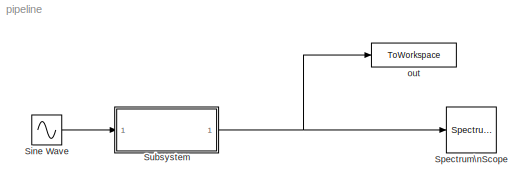
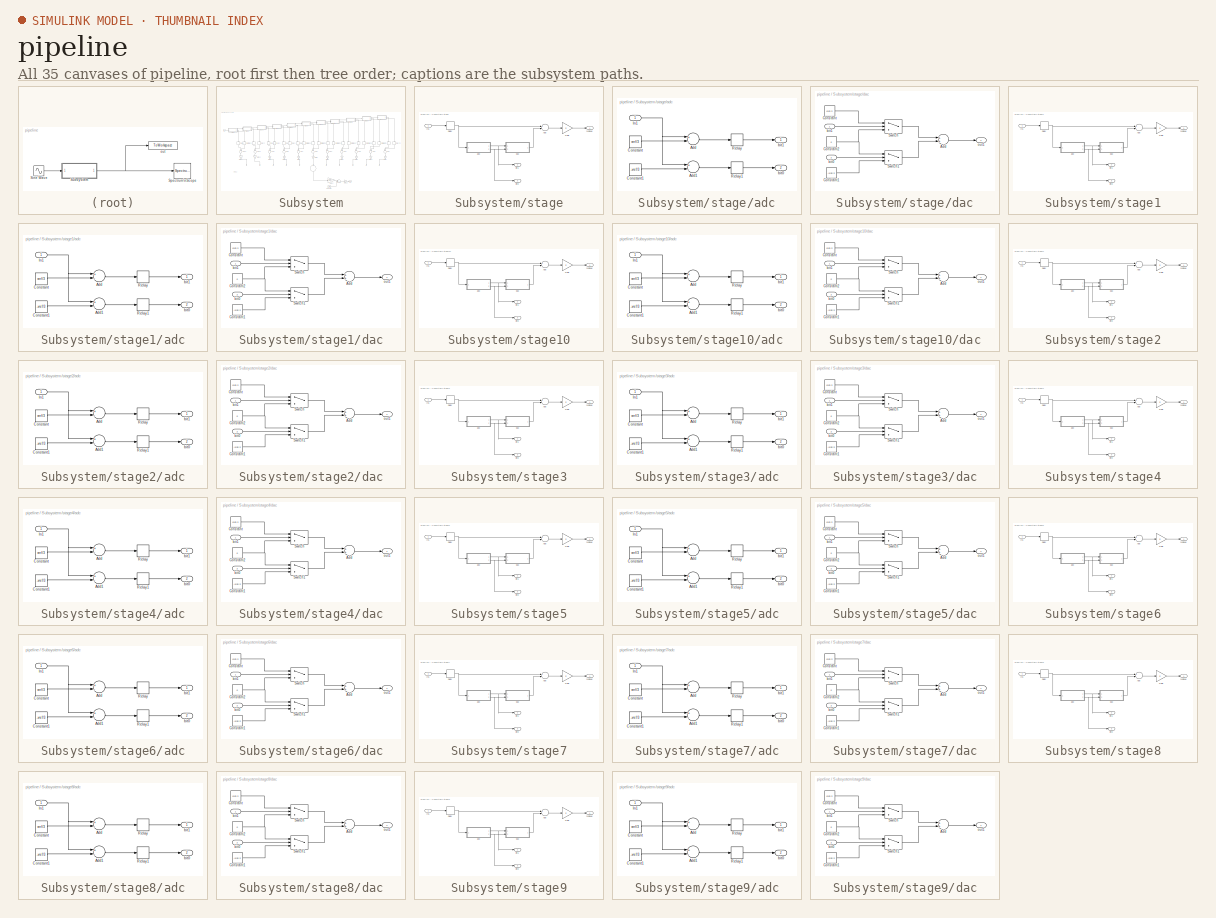
[diagram: thumbnail index - all 35 canvases of the model, root first then tree order]
MODEL pipeline
KIND model
BLOCK [Sin] Sine Wave
  Amplitude = vin_amp
  Frequency = 2*pi*fsig
  Ports = [0, 1]
  SID = 1110
  SampleTime = Ts
  VectorParams1D = off
BLOCK [SpectrumAnalyzer] Spectrum\nScope
  Commented = on
  Ports = [1]
  SID = 3024
  ScopeSpecificationString = spbscopes.SpectrumAnalyzerBlockCfg('CurrentConfiguration', extmgr.ConfigurationSet(extmgr.Configuration('Core','General UI',true),extmgr.Configuration('Core','Source UI',true),extmgr.Configuration('Sources','WiredSimulink',true),extmgr.Configuration('Sources','SimulinkEvent',false),extmgr.Configuration('Sources','Simulink',false),extmgr.Configuration('Sources','SPTool',false),extmgr.Configuration(...<+4573ch>
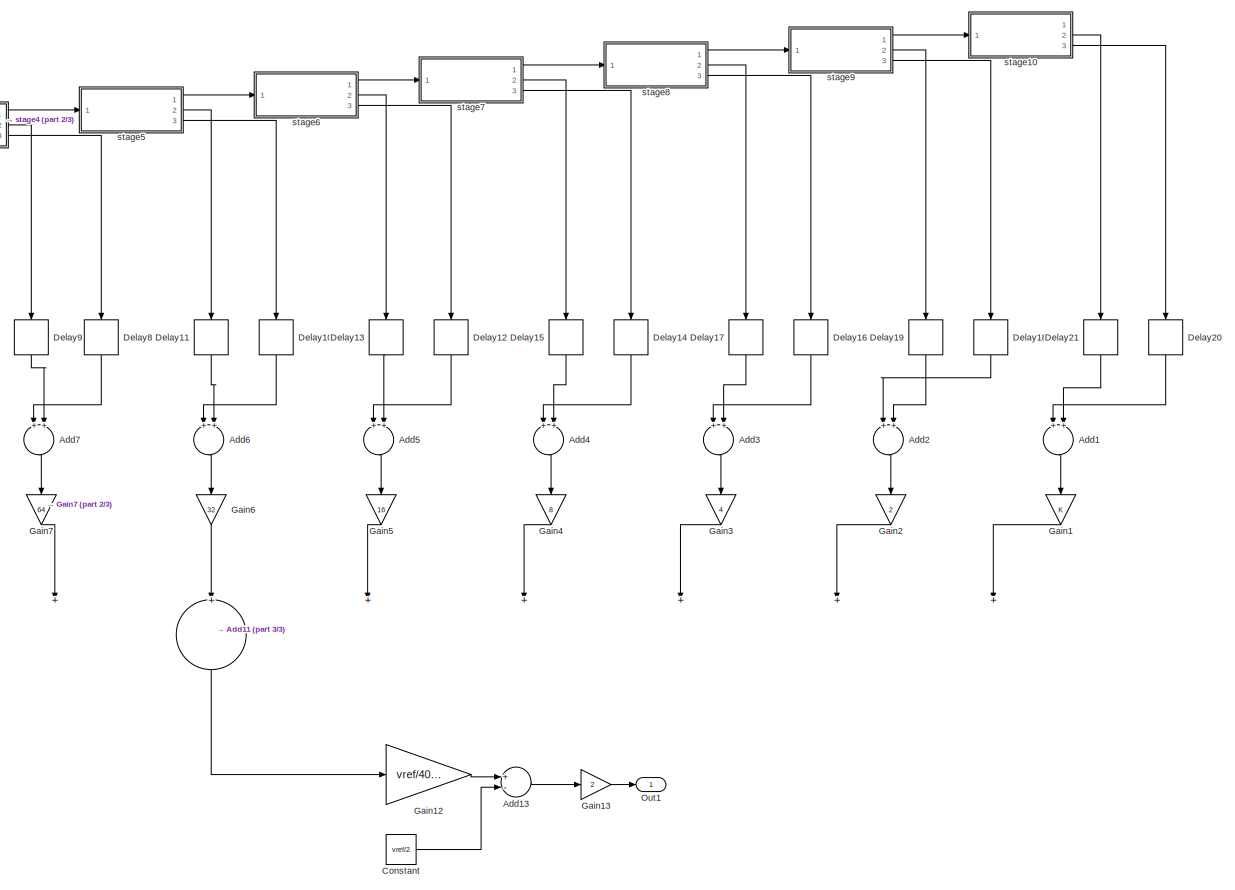
[diagram: Subsystem - part 1/3, right side, full height]
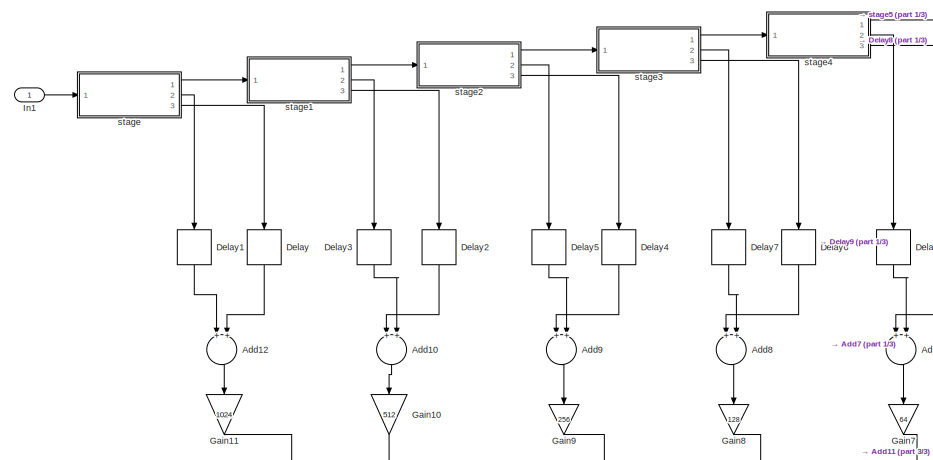
[diagram: Subsystem - part 2/3, middle left region]
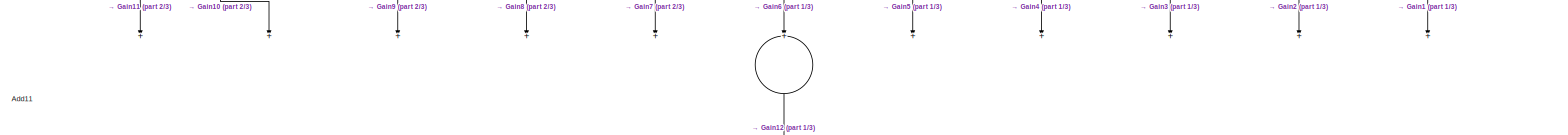
[diagram: Subsystem - part 3/3, full width, bottom band]
BLOCK [SubSystem] Subsystem
  Ports = [1, 1]
  RequestExecContextInheritance = off
  SID = 435
BLOCK [Sum] Subsystem/Add1
  InputSameDT = off
  OutDataTypeStr = Inherit: Inherit via internal rule
  Ports = [2, 1]
  SID = 1446
  SaturateOnIntegerOverflow = off
BLOCK [Sum] Subsystem/Add10
  InputSameDT = off
  OutDataTypeStr = Inherit: Inherit via internal rule
  Ports = [2, 1]
  SID = 1470
  SaturateOnIntegerOverflow = off
BLOCK [Sum] Subsystem/Add11
  InputSameDT = off
  Inputs = +++++++++++
  OutDataTypeStr = Inherit: Inherit via internal rule
  Ports = [11, 1]
  SID = 1473
  SaturateOnIntegerOverflow = off
BLOCK [Sum] Subsystem/Add12
  InputSameDT = off
  OutDataTypeStr = Inherit: Inherit via internal rule
  Ports = [2, 1]
  SID = 3019
  SaturateOnIntegerOverflow = off
BLOCK [Sum] Subsystem/Add13
  InputSameDT = off
  Inputs = +-
  OutDataTypeStr = Inherit: Inherit via internal rule
  Ports = [2, 1]
  SID = 3021
  SaturateOnIntegerOverflow = off
BLOCK [Sum] Subsystem/Add2
  InputSameDT = off
  OutDataTypeStr = Inherit: Inherit via internal rule
  Ports = [2, 1]
  SID = 1448
  SaturateOnIntegerOverflow = off
BLOCK [Sum] Subsystem/Add3
  InputSameDT = off
  OutDataTypeStr = Inherit: Inherit via internal rule
  Ports = [2, 1]
  SID = 1456
  SaturateOnIntegerOverflow = off
BLOCK [Sum] Subsystem/Add4
  InputSameDT = off
  OutDataTypeStr = Inherit: Inherit via internal rule
  Ports = [2, 1]
  SID = 1458
  SaturateOnIntegerOverflow = off
BLOCK [Sum] Subsystem/Add5
  InputSameDT = off
  OutDataTypeStr = Inherit: Inherit via internal rule
  Ports = [2, 1]
  SID = 1460
  SaturateOnIntegerOverflow = off
BLOCK [Sum] Subsystem/Add6
  InputSameDT = off
  OutDataTypeStr = Inherit: Inherit via internal rule
  Ports = [2, 1]
  SID = 1462
  SaturateOnIntegerOverflow = off
BLOCK [Sum] Subsystem/Add7
  InputSameDT = off
  OutDataTypeStr = Inherit: Inherit via internal rule
  Ports = [2, 1]
  SID = 1464
  SaturateOnIntegerOverflow = off
BLOCK [Sum] Subsystem/Add8
  InputSameDT = off
  OutDataTypeStr = Inherit: Inherit via internal rule
  Ports = [2, 1]
  SID = 1466
  SaturateOnIntegerOverflow = off
BLOCK [Sum] Subsystem/Add9
  InputSameDT = off
  OutDataTypeStr = Inherit: Inherit via internal rule
  Ports = [2, 1]
  SID = 1468
  SaturateOnIntegerOverflow = off
BLOCK [Constant] Subsystem/Constant
  SID = 3022
  Value = vref/2
BLOCK [Delay] Subsystem/Delay
  DelayLength = 11
  InputPortMap = u0
  Ports = [1, 1]
  SID = 1419
  SampleTime = Ts
BLOCK [Delay] Subsystem/Delay1
  DelayLength = 11
  InputPortMap = u0
  Ports = [1, 1]
  SID = 1421
  SampleTime = Ts
BLOCK [Delay] Subsystem/Delay10
  DelayLength = 6
  InputPortMap = u0
  Ports = [1, 1]
  SID = 1430
  SampleTime = Ts
BLOCK [Delay] Subsystem/Delay11
  DelayLength = 6
  InputPortMap = u0
  Ports = [1, 1]
  SID = 1431
  SampleTime = Ts
BLOCK [Delay] Subsystem/Delay12
  DelayLength = 5
  InputPortMap = u0
  Ports = [1, 1]
  SID = 1432
  SampleTime = Ts
BLOCK [Delay] Subsystem/Delay13
  DelayLength = 5
  InputPortMap = u0
  Ports = [1, 1]
  SID = 1433
  SampleTime = Ts
BLOCK [Delay] Subsystem/Delay14
  DelayLength = 4
  InputPortMap = u0
  Ports = [1, 1]
  SID = 1434
  SampleTime = Ts
BLOCK [Delay] Subsystem/Delay15
  DelayLength = 4
  InputPortMap = u0
  Ports = [1, 1]
  SID = 1435
  SampleTime = Ts
BLOCK [Delay] Subsystem/Delay16
  DelayLength = 3
  InputPortMap = u0
  Ports = [1, 1]
  SID = 1436
  SampleTime = Ts
BLOCK [Delay] Subsystem/Delay17
  DelayLength = 3
  InputPortMap = u0
  Ports = [1, 1]
  SID = 1437
  SampleTime = Ts
BLOCK [Delay] Subsystem/Delay18
  InputPortMap = u0
  Ports = [1, 1]
  SID = 1438
  SampleTime = Ts
BLOCK [Delay] Subsystem/Delay19
  InputPortMap = u0
  Ports = [1, 1]
  SID = 1439
  SampleTime = Ts
BLOCK [Delay] Subsystem/Delay2
  DelayLength = 10
  InputPortMap = u0
  Ports = [1, 1]
  SID = 1422
  SampleTime = Ts
BLOCK [Delay] Subsystem/Delay20
  DelayLength = 1
  InputPortMap = u0
  Ports = [1, 1]
  SID = 1440
  SampleTime = Ts
BLOCK [Delay] Subsystem/Delay21
  DelayLength = 1
  InputPortMap = u0
  Ports = [1, 1]
  SID = 1441
  SampleTime = Ts
BLOCK [Delay] Subsystem/Delay3
  DelayLength = 10
  InputPortMap = u0
  Ports = [1, 1]
  SID = 1423
  SampleTime = Ts
BLOCK [Delay] Subsystem/Delay4
  DelayLength = 9
  InputPortMap = u0
  Ports = [1, 1]
  SID = 1424
  SampleTime = Ts
BLOCK [Delay] Subsystem/Delay5
  DelayLength = 9
  InputPortMap = u0
  Ports = [1, 1]
  SID = 1425
  SampleTime = Ts
BLOCK [Delay] Subsystem/Delay6
  DelayLength = 8
  InputPortMap = u0
  Ports = [1, 1]
  SID = 1426
  SampleTime = Ts
BLOCK [Delay] Subsystem/Delay7
  DelayLength = 8
  InputPortMap = u0
  Ports = [1, 1]
  SID = 1427
  SampleTime = Ts
BLOCK [Delay] Subsystem/Delay8
  DelayLength = 7
  InputPortMap = u0
  Ports = [1, 1]
  SID = 1428
  SampleTime = Ts
BLOCK [Delay] Subsystem/Delay9
  DelayLength = 7
  InputPortMap = u0
  Ports = [1, 1]
  SID = 1429
  SampleTime = Ts
BLOCK [Gain] Subsystem/Gain1
  OutDataTypeStr = Inherit: Inherit via internal rule
  ParamDataTypeStr = Inherit: Inherit via internal rule
  SID = 1447
  SaturateOnIntegerOverflow = off
BLOCK [Gain] Subsystem/Gain10
  Gain = 512
  OutDataTypeStr = Inherit: Inherit via internal rule
  ParamDataTypeStr = Inherit: Inherit via internal rule
  SID = 1471
  SaturateOnIntegerOverflow = off
BLOCK [Gain] Subsystem/Gain11
  Gain = 1024
  OutDataTypeStr = Inherit: Inherit via internal rule
  ParamDataTypeStr = Inherit: Inherit via internal rule
  SID = 1472
  SaturateOnIntegerOverflow = off
BLOCK [Gain] Subsystem/Gain12
  Gain = vref/4096
  OutDataTypeStr = Inherit: Inherit via internal rule
  ParamDataTypeStr = Inherit: Inherit via internal rule
  SID = 3020
  SaturateOnIntegerOverflow = off
BLOCK [Gain] Subsystem/Gain13
  Gain = 2
  OutDataTypeStr = Inherit: Inherit via internal rule
  ParamDataTypeStr = Inherit: Inherit via internal rule
  SID = 3023
  SaturateOnIntegerOverflow = off
BLOCK [Gain] Subsystem/Gain2
  Gain = 2
  OutDataTypeStr = Inherit: Inherit via internal rule
  ParamDataTypeStr = Inherit: Inherit via internal rule
  SID = 1449
  SaturateOnIntegerOverflow = off
BLOCK [Gain] Subsystem/Gain3
  Gain = 4
  OutDataTypeStr = Inherit: Inherit via internal rule
  ParamDataTypeStr = Inherit: Inherit via internal rule
  SID = 1457
  SaturateOnIntegerOverflow = off
BLOCK [Gain] Subsystem/Gain4
  Gain = 8
  OutDataTypeStr = Inherit: Inherit via internal rule
  ParamDataTypeStr = Inherit: Inherit via internal rule
  SID = 1459
  SaturateOnIntegerOverflow = off
BLOCK [Gain] Subsystem/Gain5
  Gain = 16
  OutDataTypeStr = Inherit: Inherit via internal rule
  ParamDataTypeStr = Inherit: Inherit via internal rule
  SID = 1461
  SaturateOnIntegerOverflow = off
BLOCK [Gain] Subsystem/Gain6
  Gain = 32
  OutDataTypeStr = Inherit: Inherit via internal rule
  ParamDataTypeStr = Inherit: Inherit via internal rule
  SID = 1463
  SaturateOnIntegerOverflow = off
BLOCK [Gain] Subsystem/Gain7
  Gain = 64
  OutDataTypeStr = Inherit: Inherit via internal rule
  ParamDataTypeStr = Inherit: Inherit via internal rule
  SID = 1465
  SaturateOnIntegerOverflow = off
BLOCK [Gain] Subsystem/Gain8
  Gain = 128
  OutDataTypeStr = Inherit: Inherit via internal rule
  ParamDataTypeStr = Inherit: Inherit via internal rule
  SID = 1467
  SaturateOnIntegerOverflow = off
BLOCK [Gain] Subsystem/Gain9
  Gain = 256
  OutDataTypeStr = Inherit: Inherit via internal rule
  ParamDataTypeStr = Inherit: Inherit via internal rule
  SID = 1469
  SaturateOnIntegerOverflow = off
BLOCK [Inport] Subsystem/In1
  IconDisplay = Port number
  SID = 436
BLOCK [Outport] Subsystem/Out1
  IconDisplay = Port number
  SID = 1476
  VectorParamsAs1DForOutWhenUnconnected = off
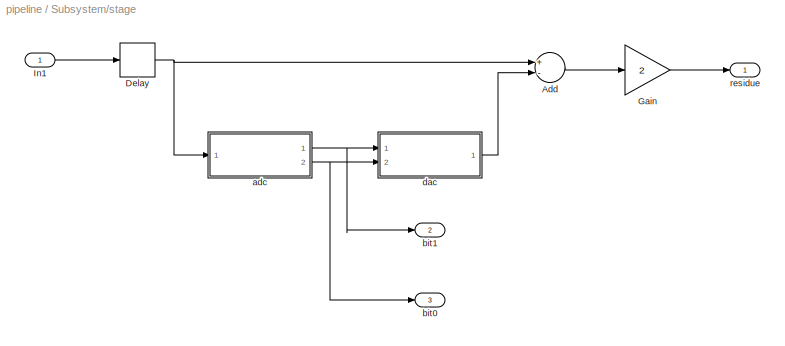
BLOCK [SubSystem] Subsystem/stage
  Ports = [1, 3]
  RequestExecContextInheritance = off
  SID = 774
BLOCK [Sum] Subsystem/stage/Add
  InputSameDT = off
  Inputs = +-
  OutDataTypeStr = Inherit: Inherit via internal rule
  Ports = [2, 1]
  SID = 776
  SaturateOnIntegerOverflow = off
BLOCK [Delay] Subsystem/stage/Delay
  DelayLength = 1
  InputPortMap = u0
  Ports = [1, 1]
  SID = 777
  SampleTime = Ts
BLOCK [Gain] Subsystem/stage/Gain
  Gain = 2
  OutDataTypeStr = Inherit: Inherit via internal rule
  ParamDataTypeStr = Inherit: Inherit via internal rule
  SID = 778
  SaturateOnIntegerOverflow = off
BLOCK [Inport] Subsystem/stage/In1
  IconDisplay = Port number
  SID = 775
BLOCK [SubSystem] Subsystem/stage/adc
  Ports = [1, 2]
  RequestExecContextInheritance = off
  SID = 779
BLOCK [Sum] Subsystem/stage/adc/Add
  InputSameDT = off
  Inputs = +-
  OutDataTypeStr = Inherit: Inherit via internal rule
  Ports = [2, 1]
  SID = 781
  SaturateOnIntegerOverflow = off
BLOCK [Sum] Subsystem/stage/adc/Add1
  InputSameDT = off
  Inputs = +-
  OutDataTypeStr = Inherit: Inherit via internal rule
  Ports = [2, 1]
  SID = 782
  SaturateOnIntegerOverflow = off
BLOCK [Constant] Subsystem/stage/adc/Constant
  SID = 783
  Value = vref/3
BLOCK [Constant] Subsystem/stage/adc/Constant1
  SID = 784
  Value = -vref/3
BLOCK [Inport] Subsystem/stage/adc/In1
  IconDisplay = Port number
  SID = 780
BLOCK [Relay] Subsystem/stage/adc/Relay
  OffSwitchValue = 0
  OnSwitchValue = 0
  SID = 785
BLOCK [Relay] Subsystem/stage/adc/Relay1
  OffSwitchValue = 0
  OnSwitchValue = 0
  SID = 786
BLOCK [Outport] Subsystem/stage/adc/bit0
  IconDisplay = Port number
  Port = 2
  SID = 788
  VectorParamsAs1DForOutWhenUnconnected = off
BLOCK [Outport] Subsystem/stage/adc/bit1
  IconDisplay = Port number
  SID = 787
  VectorParamsAs1DForOutWhenUnconnected = off
BLOCK [Outport] Subsystem/stage/bit0
  IconDisplay = Port number
  Port = 3
  SID = 801
  VectorParamsAs1DForOutWhenUnconnected = off
BLOCK [Outport] Subsystem/stage/bit1
  IconDisplay = Port number
  Port = 2
  SID = 800
  VectorParamsAs1DForOutWhenUnconnected = off
BLOCK [SubSystem] Subsystem/stage/dac
  Ports = [2, 1]
  RequestExecContextInheritance = off
  SID = 789
BLOCK [Sum] Subsystem/stage/dac/Add
  InputSameDT = off
  OutDataTypeStr = Inherit: Inherit via internal rule
  Ports = [2, 1]
  SID = 792
  SaturateOnIntegerOverflow = off
BLOCK [Constant] Subsystem/stage/dac/Constant
  SID = 793
  Value = vref/2
BLOCK [Constant] Subsystem/stage/dac/Constant1
  SID = 794
  Value = -vref/2
BLOCK [Constant] Subsystem/stage/dac/Constant2
  SID = 795
  Value = 0
BLOCK [Switch] Subsystem/stage/dac/Switch
  Criteria = u2 > Threshold
  InputSameDT = off
  SID = 796
  SaturateOnIntegerOverflow = off
BLOCK [Switch] Subsystem/stage/dac/Switch1
  Criteria = u2 > Threshold
  InputSameDT = off
  SID = 797
  SaturateOnIntegerOverflow = off
BLOCK [Inport] Subsystem/stage/dac/bit0
  IconDisplay = Port number
  Port = 2
  SID = 791
BLOCK [Inport] Subsystem/stage/dac/bit1
  IconDisplay = Port number
  SID = 790
BLOCK [Outport] Subsystem/stage/dac/out1
  IconDisplay = Port number
  SID = 798
  VectorParamsAs1DForOutWhenUnconnected = off
BLOCK [Outport] Subsystem/stage/residue
  IconDisplay = Port number
  SID = 799
  VectorParamsAs1DForOutWhenUnconnected = off
BLOCK [SubSystem] Subsystem/stage1
  Ports = [1, 3]
  RequestExecContextInheritance = off
  SID = 2225
BLOCK [Sum] Subsystem/stage1/Add
  InputSameDT = off
  Inputs = +-
  OutDataTypeStr = Inherit: Inherit via internal rule
  Ports = [2, 1]
  SID = 2227
  SaturateOnIntegerOverflow = off
BLOCK [Delay] Subsystem/stage1/Delay
  DelayLength = 1
  InputPortMap = u0
  Ports = [1, 1]
  SID = 2228
  SampleTime = Ts
BLOCK [Gain] Subsystem/stage1/Gain
  Gain = 2
  OutDataTypeStr = Inherit: Inherit via internal rule
  ParamDataTypeStr = Inherit: Inherit via internal rule
  SID = 2229
  SaturateOnIntegerOverflow = off
BLOCK [Inport] Subsystem/stage1/In1
  IconDisplay = Port number
  SID = 2226
BLOCK [SubSystem] Subsystem/stage1/adc
  Ports = [1, 2]
  RequestExecContextInheritance = off
  SID = 2230
BLOCK [Sum] Subsystem/stage1/adc/Add
  InputSameDT = off
  Inputs = +-
  OutDataTypeStr = Inherit: Inherit via internal rule
  Ports = [2, 1]
  SID = 2232
  SaturateOnIntegerOverflow = off
BLOCK [Sum] Subsystem/stage1/adc/Add1
  InputSameDT = off
  Inputs = +-
  OutDataTypeStr = Inherit: Inherit via internal rule
  Ports = [2, 1]
  SID = 2233
  SaturateOnIntegerOverflow = off
BLOCK [Constant] Subsystem/stage1/adc/Constant
  SID = 2234
  Value = vref/3
BLOCK [Constant] Subsystem/stage1/adc/Constant1
  SID = 2235
  Value = -vref/3
BLOCK [Inport] Subsystem/stage1/adc/In1
  IconDisplay = Port number
  SID = 2231
BLOCK [Relay] Subsystem/stage1/adc/Relay
  OffSwitchValue = 0
  OnSwitchValue = 0
  SID = 2236
BLOCK [Relay] Subsystem/stage1/adc/Relay1
  OffSwitchValue = 0
  OnSwitchValue = 0
  SID = 2237
BLOCK [Outport] Subsystem/stage1/adc/bit0
  IconDisplay = Port number
  Port = 2
  SID = 2239
  VectorParamsAs1DForOutWhenUnconnected = off
BLOCK [Outport] Subsystem/stage1/adc/bit1
  IconDisplay = Port number
  SID = 2238
  VectorParamsAs1DForOutWhenUnconnected = off
BLOCK [Outport] Subsystem/stage1/bit0
  IconDisplay = Port number
  Port = 3
  SID = 2252
  VectorParamsAs1DForOutWhenUnconnected = off
BLOCK [Outport] Subsystem/stage1/bit1
  IconDisplay = Port number
  Port = 2
  SID = 2251
  VectorParamsAs1DForOutWhenUnconnected = off
BLOCK [SubSystem] Subsystem/stage1/dac
  Ports = [2, 1]
  RequestExecContextInheritance = off
  SID = 2240
BLOCK [Sum] Subsystem/stage1/dac/Add
  InputSameDT = off
  OutDataTypeStr = Inherit: Inherit via internal rule
  Ports = [2, 1]
  SID = 2243
  SaturateOnIntegerOverflow = off
BLOCK [Constant] Subsystem/stage1/dac/Constant
  SID = 2244
  Value = vref/2
BLOCK [Constant] Subsystem/stage1/dac/Constant1
  SID = 2245
  Value = -vref/2
BLOCK [Constant] Subsystem/stage1/dac/Constant2
  SID = 2246
  Value = 0
BLOCK [Switch] Subsystem/stage1/dac/Switch
  Criteria = u2 > Threshold
  InputSameDT = off
  SID = 2247
  SaturateOnIntegerOverflow = off
BLOCK [Switch] Subsystem/stage1/dac/Switch1
  Criteria = u2 > Threshold
  InputSameDT = off
  SID = 2248
  SaturateOnIntegerOverflow = off
BLOCK [Inport] Subsystem/stage1/dac/bit0
  IconDisplay = Port number
  Port = 2
  SID = 2242
BLOCK [Inport] Subsystem/stage1/dac/bit1
  IconDisplay = Port number
  SID = 2241
BLOCK [Outport] Subsystem/stage1/dac/out1
  IconDisplay = Port number
  SID = 2249
  VectorParamsAs1DForOutWhenUnconnected = off
BLOCK [Outport] Subsystem/stage1/residue
  IconDisplay = Port number
  SID = 2250
  VectorParamsAs1DForOutWhenUnconnected = off
BLOCK [SubSystem] Subsystem/stage10
  Ports = [1, 3]
  RequestExecContextInheritance = off
  SID = 2477
BLOCK [Sum] Subsystem/stage10/Add
  InputSameDT = off
  Inputs = +-
  OutDataTypeStr = Inherit: Inherit via internal rule
  Ports = [2, 1]
  SID = 2479
  SaturateOnIntegerOverflow = off
BLOCK [Delay] Subsystem/stage10/Delay
  DelayLength = 1
  InputPortMap = u0
  Ports = [1, 1]
  SID = 2480
  SampleTime = Ts
BLOCK [Gain] Subsystem/stage10/Gain
  Gain = 2
  OutDataTypeStr = Inherit: Inherit via internal rule
  ParamDataTypeStr = Inherit: Inherit via internal rule
  SID = 2481
  SaturateOnIntegerOverflow = off
BLOCK [Inport] Subsystem/stage10/In1
  IconDisplay = Port number
  SID = 2478
BLOCK [SubSystem] Subsystem/stage10/adc
  Ports = [1, 2]
  RequestExecContextInheritance = off
  SID = 2482
BLOCK [Sum] Subsystem/stage10/adc/Add
  InputSameDT = off
  Inputs = +-
  OutDataTypeStr = Inherit: Inherit via internal rule
  Ports = [2, 1]
  SID = 2484
  SaturateOnIntegerOverflow = off
BLOCK [Sum] Subsystem/stage10/adc/Add1
  InputSameDT = off
  Inputs = +-
  OutDataTypeStr = Inherit: Inherit via internal rule
  Ports = [2, 1]
  SID = 2485
  SaturateOnIntegerOverflow = off
BLOCK [Constant] Subsystem/stage10/adc/Constant
  SID = 2486
  Value = vref/3
BLOCK [Constant] Subsystem/stage10/adc/Constant1
  SID = 2487
  Value = -vref/3
BLOCK [Inport] Subsystem/stage10/adc/In1
  IconDisplay = Port number
  SID = 2483
BLOCK [Relay] Subsystem/stage10/adc/Relay
  OffSwitchValue = 0
  OnSwitchValue = 0
  SID = 2488
BLOCK [Relay] Subsystem/stage10/adc/Relay1
  OffSwitchValue = 0
  OnSwitchValue = 0
  SID = 2489
BLOCK [Outport] Subsystem/stage10/adc/bit0
  IconDisplay = Port number
  Port = 2
  SID = 2491
  VectorParamsAs1DForOutWhenUnconnected = off
BLOCK [Outport] Subsystem/stage10/adc/bit1
  IconDisplay = Port number
  SID = 2490
  VectorParamsAs1DForOutWhenUnconnected = off
BLOCK [Outport] Subsystem/stage10/bit0
  IconDisplay = Port number
  Port = 3
  SID = 2504
  VectorParamsAs1DForOutWhenUnconnected = off
BLOCK [Outport] Subsystem/stage10/bit1
  IconDisplay = Port number
  Port = 2
  SID = 2503
  VectorParamsAs1DForOutWhenUnconnected = off
BLOCK [SubSystem] Subsystem/stage10/dac
  Ports = [2, 1]
  RequestExecContextInheritance = off
  SID = 2492
BLOCK [Sum] Subsystem/stage10/dac/Add
  InputSameDT = off
  OutDataTypeStr = Inherit: Inherit via internal rule
  Ports = [2, 1]
  SID = 2495
  SaturateOnIntegerOverflow = off
BLOCK [Constant] Subsystem/stage10/dac/Constant
  SID = 2496
  Value = vref/2
BLOCK [Constant] Subsystem/stage10/dac/Constant1
  SID = 2497
  Value = -vref/2
BLOCK [Constant] Subsystem/stage10/dac/Constant2
  SID = 2498
  Value = 0
BLOCK [Switch] Subsystem/stage10/dac/Switch
  Criteria = u2 > Threshold
  InputSameDT = off
  SID = 2499
  SaturateOnIntegerOverflow = off
BLOCK [Switch] Subsystem/stage10/dac/Switch1
  Criteria = u2 > Threshold
  InputSameDT = off
  SID = 2500
  SaturateOnIntegerOverflow = off
BLOCK [Inport] Subsystem/stage10/dac/bit0
  IconDisplay = Port number
  Port = 2
  SID = 2494
BLOCK [Inport] Subsystem/stage10/dac/bit1
  IconDisplay = Port number
  SID = 2493
BLOCK [Outport] Subsystem/stage10/dac/out1
  IconDisplay = Port number
  SID = 2501
  VectorParamsAs1DForOutWhenUnconnected = off
BLOCK [Outport] Subsystem/stage10/residue
  IconDisplay = Port number
  SID = 2502
  VectorParamsAs1DForOutWhenUnconnected = off
BLOCK [SubSystem] Subsystem/stage2
  Ports = [1, 3]
  RequestExecContextInheritance = off
  SID = 2253
BLOCK [Sum] Subsystem/stage2/Add
  InputSameDT = off
  Inputs = +-
  OutDataTypeStr = Inherit: Inherit via internal rule
  Ports = [2, 1]
  SID = 2255
  SaturateOnIntegerOverflow = off
BLOCK [Delay] Subsystem/stage2/Delay
  DelayLength = 1
  InputPortMap = u0
  Ports = [1, 1]
  SID = 2256
  SampleTime = Ts
BLOCK [Gain] Subsystem/stage2/Gain
  Gain = 2
  OutDataTypeStr = Inherit: Inherit via internal rule
  ParamDataTypeStr = Inherit: Inherit via internal rule
  SID = 2257
  SaturateOnIntegerOverflow = off
BLOCK [Inport] Subsystem/stage2/In1
  IconDisplay = Port number
  SID = 2254
BLOCK [SubSystem] Subsystem/stage2/adc
  Ports = [1, 2]
  RequestExecContextInheritance = off
  SID = 2258
BLOCK [Sum] Subsystem/stage2/adc/Add
  InputSameDT = off
  Inputs = +-
  OutDataTypeStr = Inherit: Inherit via internal rule
  Ports = [2, 1]
  SID = 2260
  SaturateOnIntegerOverflow = off
BLOCK [Sum] Subsystem/stage2/adc/Add1
  InputSameDT = off
  Inputs = +-
  OutDataTypeStr = Inherit: Inherit via internal rule
  Ports = [2, 1]
  SID = 2261
  SaturateOnIntegerOverflow = off
BLOCK [Constant] Subsystem/stage2/adc/Constant
  SID = 2262
  Value = vref/3
BLOCK [Constant] Subsystem/stage2/adc/Constant1
  SID = 2263
  Value = -vref/3
BLOCK [Inport] Subsystem/stage2/adc/In1
  IconDisplay = Port number
  SID = 2259
BLOCK [Relay] Subsystem/stage2/adc/Relay
  OffSwitchValue = 0
  OnSwitchValue = 0
  SID = 2264
BLOCK [Relay] Subsystem/stage2/adc/Relay1
  OffSwitchValue = 0
  OnSwitchValue = 0
  SID = 2265
BLOCK [Outport] Subsystem/stage2/adc/bit0
  IconDisplay = Port number
  Port = 2
  SID = 2267
  VectorParamsAs1DForOutWhenUnconnected = off
BLOCK [Outport] Subsystem/stage2/adc/bit1
  IconDisplay = Port number
  SID = 2266
  VectorParamsAs1DForOutWhenUnconnected = off
BLOCK [Outport] Subsystem/stage2/bit0
  IconDisplay = Port number
  Port = 3
  SID = 2280
  VectorParamsAs1DForOutWhenUnconnected = off
BLOCK [Outport] Subsystem/stage2/bit1
  IconDisplay = Port number
  Port = 2
  SID = 2279
  VectorParamsAs1DForOutWhenUnconnected = off
BLOCK [SubSystem] Subsystem/stage2/dac
  Ports = [2, 1]
  RequestExecContextInheritance = off
  SID = 2268
BLOCK [Sum] Subsystem/stage2/dac/Add
  InputSameDT = off
  OutDataTypeStr = Inherit: Inherit via internal rule
  Ports = [2, 1]
  SID = 2271
  SaturateOnIntegerOverflow = off
BLOCK [Constant] Subsystem/stage2/dac/Constant
  SID = 2272
  Value = vref/2
BLOCK [Constant] Subsystem/stage2/dac/Constant1
  SID = 2273
  Value = -vref/2
BLOCK [Constant] Subsystem/stage2/dac/Constant2
  SID = 2274
  Value = 0
BLOCK [Switch] Subsystem/stage2/dac/Switch
  Criteria = u2 > Threshold
  InputSameDT = off
  SID = 2275
  SaturateOnIntegerOverflow = off
BLOCK [Switch] Subsystem/stage2/dac/Switch1
  Criteria = u2 > Threshold
  InputSameDT = off
  SID = 2276
  SaturateOnIntegerOverflow = off
BLOCK [Inport] Subsystem/stage2/dac/bit0
  IconDisplay = Port number
  Port = 2
  SID = 2270
BLOCK [Inport] Subsystem/stage2/dac/bit1
  IconDisplay = Port number
  SID = 2269
BLOCK [Outport] Subsystem/stage2/dac/out1
  IconDisplay = Port number
  SID = 2277
  VectorParamsAs1DForOutWhenUnconnected = off
BLOCK [Outport] Subsystem/stage2/residue
  IconDisplay = Port number
  SID = 2278
  VectorParamsAs1DForOutWhenUnconnected = off
BLOCK [SubSystem] Subsystem/stage3
  Ports = [1, 3]
  RequestExecContextInheritance = off
  SID = 2281
BLOCK [Sum] Subsystem/stage3/Add
  InputSameDT = off
  Inputs = +-
  OutDataTypeStr = Inherit: Inherit via internal rule
  Ports = [2, 1]
  SID = 2283
  SaturateOnIntegerOverflow = off
BLOCK [Delay] Subsystem/stage3/Delay
  DelayLength = 1
  InputPortMap = u0
  Ports = [1, 1]
  SID = 2284
  SampleTime = Ts
BLOCK [Gain] Subsystem/stage3/Gain
  Gain = 2
  OutDataTypeStr = Inherit: Inherit via internal rule
  ParamDataTypeStr = Inherit: Inherit via internal rule
  SID = 2285
  SaturateOnIntegerOverflow = off
BLOCK [Inport] Subsystem/stage3/In1
  IconDisplay = Port number
  SID = 2282
BLOCK [SubSystem] Subsystem/stage3/adc
  Ports = [1, 2]
  RequestExecContextInheritance = off
  SID = 2286
BLOCK [Sum] Subsystem/stage3/adc/Add
  InputSameDT = off
  Inputs = +-
  OutDataTypeStr = Inherit: Inherit via internal rule
  Ports = [2, 1]
  SID = 2288
  SaturateOnIntegerOverflow = off
BLOCK [Sum] Subsystem/stage3/adc/Add1
  InputSameDT = off
  Inputs = +-
  OutDataTypeStr = Inherit: Inherit via internal rule
  Ports = [2, 1]
  SID = 2289
  SaturateOnIntegerOverflow = off
BLOCK [Constant] Subsystem/stage3/adc/Constant
  SID = 2290
  Value = vref/3
BLOCK [Constant] Subsystem/stage3/adc/Constant1
  SID = 2291
  Value = -vref/3
BLOCK [Inport] Subsystem/stage3/adc/In1
  IconDisplay = Port number
  SID = 2287
BLOCK [Relay] Subsystem/stage3/adc/Relay
  OffSwitchValue = 0
  OnSwitchValue = 0
  SID = 2292
BLOCK [Relay] Subsystem/stage3/adc/Relay1
  OffSwitchValue = 0
  OnSwitchValue = 0
  SID = 2293
BLOCK [Outport] Subsystem/stage3/adc/bit0
  IconDisplay = Port number
  Port = 2
  SID = 2295
  VectorParamsAs1DForOutWhenUnconnected = off
BLOCK [Outport] Subsystem/stage3/adc/bit1
  IconDisplay = Port number
  SID = 2294
  VectorParamsAs1DForOutWhenUnconnected = off
BLOCK [Outport] Subsystem/stage3/bit0
  IconDisplay = Port number
  Port = 3
  SID = 2308
  VectorParamsAs1DForOutWhenUnconnected = off
BLOCK [Outport] Subsystem/stage3/bit1
  IconDisplay = Port number
  Port = 2
  SID = 2307
  VectorParamsAs1DForOutWhenUnconnected = off
BLOCK [SubSystem] Subsystem/stage3/dac
  Ports = [2, 1]
  RequestExecContextInheritance = off
  SID = 2296
BLOCK [Sum] Subsystem/stage3/dac/Add
  InputSameDT = off
  OutDataTypeStr = Inherit: Inherit via internal rule
  Ports = [2, 1]
  SID = 2299
  SaturateOnIntegerOverflow = off
BLOCK [Constant] Subsystem/stage3/dac/Constant
  SID = 2300
  Value = vref/2
BLOCK [Constant] Subsystem/stage3/dac/Constant1
  SID = 2301
  Value = -vref/2
BLOCK [Constant] Subsystem/stage3/dac/Constant2
  SID = 2302
  Value = 0
BLOCK [Switch] Subsystem/stage3/dac/Switch
  Criteria = u2 > Threshold
  InputSameDT = off
  SID = 2303
  SaturateOnIntegerOverflow = off
BLOCK [Switch] Subsystem/stage3/dac/Switch1
  Criteria = u2 > Threshold
  InputSameDT = off
  SID = 2304
  SaturateOnIntegerOverflow = off
BLOCK [Inport] Subsystem/stage3/dac/bit0
  IconDisplay = Port number
  Port = 2
  SID = 2298
BLOCK [Inport] Subsystem/stage3/dac/bit1
  IconDisplay = Port number
  SID = 2297
BLOCK [Outport] Subsystem/stage3/dac/out1
  IconDisplay = Port number
  SID = 2305
  VectorParamsAs1DForOutWhenUnconnected = off
BLOCK [Outport] Subsystem/stage3/residue
  IconDisplay = Port number
  SID = 2306
  VectorParamsAs1DForOutWhenUnconnected = off
BLOCK [SubSystem] Subsystem/stage4
  Ports = [1, 3]
  RequestExecContextInheritance = off
  SID = 2309
BLOCK [Sum] Subsystem/stage4/Add
  InputSameDT = off
  Inputs = +-
  OutDataTypeStr = Inherit: Inherit via internal rule
  Ports = [2, 1]
  SID = 2311
  SaturateOnIntegerOverflow = off
BLOCK [Delay] Subsystem/stage4/Delay
  DelayLength = 1
  InputPortMap = u0
  Ports = [1, 1]
  SID = 2312
  SampleTime = Ts
BLOCK [Gain] Subsystem/stage4/Gain
  Gain = 2
  OutDataTypeStr = Inherit: Inherit via internal rule
  ParamDataTypeStr = Inherit: Inherit via internal rule
  SID = 2313
  SaturateOnIntegerOverflow = off
BLOCK [Inport] Subsystem/stage4/In1
  IconDisplay = Port number
  SID = 2310
BLOCK [SubSystem] Subsystem/stage4/adc
  Ports = [1, 2]
  RequestExecContextInheritance = off
  SID = 2314
BLOCK [Sum] Subsystem/stage4/adc/Add
  InputSameDT = off
  Inputs = +-
  OutDataTypeStr = Inherit: Inherit via internal rule
  Ports = [2, 1]
  SID = 2316
  SaturateOnIntegerOverflow = off
BLOCK [Sum] Subsystem/stage4/adc/Add1
  InputSameDT = off
  Inputs = +-
  OutDataTypeStr = Inherit: Inherit via internal rule
  Ports = [2, 1]
  SID = 2317
  SaturateOnIntegerOverflow = off
BLOCK [Constant] Subsystem/stage4/adc/Constant
  SID = 2318
  Value = vref/3
BLOCK [Constant] Subsystem/stage4/adc/Constant1
  SID = 2319
  Value = -vref/3
BLOCK [Inport] Subsystem/stage4/adc/In1
  IconDisplay = Port number
  SID = 2315
BLOCK [Relay] Subsystem/stage4/adc/Relay
  OffSwitchValue = 0
  OnSwitchValue = 0
  SID = 2320
BLOCK [Relay] Subsystem/stage4/adc/Relay1
  OffSwitchValue = 0
  OnSwitchValue = 0
  SID = 2321
BLOCK [Outport] Subsystem/stage4/adc/bit0
  IconDisplay = Port number
  Port = 2
  SID = 2323
  VectorParamsAs1DForOutWhenUnconnected = off
BLOCK [Outport] Subsystem/stage4/adc/bit1
  IconDisplay = Port number
  SID = 2322
  VectorParamsAs1DForOutWhenUnconnected = off
BLOCK [Outport] Subsystem/stage4/bit0
  IconDisplay = Port number
  Port = 3
  SID = 2336
  VectorParamsAs1DForOutWhenUnconnected = off
BLOCK [Outport] Subsystem/stage4/bit1
  IconDisplay = Port number
  Port = 2
  SID = 2335
  VectorParamsAs1DForOutWhenUnconnected = off
BLOCK [SubSystem] Subsystem/stage4/dac
  Ports = [2, 1]
  RequestExecContextInheritance = off
  SID = 2324
BLOCK [Sum] Subsystem/stage4/dac/Add
  InputSameDT = off
  OutDataTypeStr = Inherit: Inherit via internal rule
  Ports = [2, 1]
  SID = 2327
  SaturateOnIntegerOverflow = off
BLOCK [Constant] Subsystem/stage4/dac/Constant
  SID = 2328
  Value = vref/2
BLOCK [Constant] Subsystem/stage4/dac/Constant1
  SID = 2329
  Value = -vref/2
BLOCK [Constant] Subsystem/stage4/dac/Constant2
  SID = 2330
  Value = 0
BLOCK [Switch] Subsystem/stage4/dac/Switch
  Criteria = u2 > Threshold
  InputSameDT = off
  SID = 2331
  SaturateOnIntegerOverflow = off
BLOCK [Switch] Subsystem/stage4/dac/Switch1
  Criteria = u2 > Threshold
  InputSameDT = off
  SID = 2332
  SaturateOnIntegerOverflow = off
BLOCK [Inport] Subsystem/stage4/dac/bit0
  IconDisplay = Port number
  Port = 2
  SID = 2326
BLOCK [Inport] Subsystem/stage4/dac/bit1
  IconDisplay = Port number
  SID = 2325
BLOCK [Outport] Subsystem/stage4/dac/out1
  IconDisplay = Port number
  SID = 2333
  VectorParamsAs1DForOutWhenUnconnected = off
BLOCK [Outport] Subsystem/stage4/residue
  IconDisplay = Port number
  SID = 2334
  VectorParamsAs1DForOutWhenUnconnected = off
BLOCK [SubSystem] Subsystem/stage5
  Ports = [1, 3]
  RequestExecContextInheritance = off
  SID = 2337
BLOCK [Sum] Subsystem/stage5/Add
  InputSameDT = off
  Inputs = +-
  OutDataTypeStr = Inherit: Inherit via internal rule
  Ports = [2, 1]
  SID = 2339
  SaturateOnIntegerOverflow = off
BLOCK [Delay] Subsystem/stage5/Delay
  DelayLength = 1
  InputPortMap = u0
  Ports = [1, 1]
  SID = 2340
  SampleTime = Ts
BLOCK [Gain] Subsystem/stage5/Gain
  Gain = 2
  OutDataTypeStr = Inherit: Inherit via internal rule
  ParamDataTypeStr = Inherit: Inherit via internal rule
  SID = 2341
  SaturateOnIntegerOverflow = off
BLOCK [Inport] Subsystem/stage5/In1
  IconDisplay = Port number
  SID = 2338
BLOCK [SubSystem] Subsystem/stage5/adc
  Ports = [1, 2]
  RequestExecContextInheritance = off
  SID = 2342
BLOCK [Sum] Subsystem/stage5/adc/Add
  InputSameDT = off
  Inputs = +-
  OutDataTypeStr = Inherit: Inherit via internal rule
  Ports = [2, 1]
  SID = 2344
  SaturateOnIntegerOverflow = off
BLOCK [Sum] Subsystem/stage5/adc/Add1
  InputSameDT = off
  Inputs = +-
  OutDataTypeStr = Inherit: Inherit via internal rule
  Ports = [2, 1]
  SID = 2345
  SaturateOnIntegerOverflow = off
BLOCK [Constant] Subsystem/stage5/adc/Constant
  SID = 2346
  Value = vref/3
BLOCK [Constant] Subsystem/stage5/adc/Constant1
  SID = 2347
  Value = -vref/3
BLOCK [Inport] Subsystem/stage5/adc/In1
  IconDisplay = Port number
  SID = 2343
BLOCK [Relay] Subsystem/stage5/adc/Relay
  OffSwitchValue = 0
  OnSwitchValue = 0
  SID = 2348
BLOCK [Relay] Subsystem/stage5/adc/Relay1
  OffSwitchValue = 0
  OnSwitchValue = 0
  SID = 2349
BLOCK [Outport] Subsystem/stage5/adc/bit0
  IconDisplay = Port number
  Port = 2
  SID = 2351
  VectorParamsAs1DForOutWhenUnconnected = off
BLOCK [Outport] Subsystem/stage5/adc/bit1
  IconDisplay = Port number
  SID = 2350
  VectorParamsAs1DForOutWhenUnconnected = off
BLOCK [Outport] Subsystem/stage5/bit0
  IconDisplay = Port number
  Port = 3
  SID = 2364
  VectorParamsAs1DForOutWhenUnconnected = off
BLOCK [Outport] Subsystem/stage5/bit1
  IconDisplay = Port number
  Port = 2
  SID = 2363
  VectorParamsAs1DForOutWhenUnconnected = off
BLOCK [SubSystem] Subsystem/stage5/dac
  Ports = [2, 1]
  RequestExecContextInheritance = off
  SID = 2352
BLOCK [Sum] Subsystem/stage5/dac/Add
  InputSameDT = off
  OutDataTypeStr = Inherit: Inherit via internal rule
  Ports = [2, 1]
  SID = 2355
  SaturateOnIntegerOverflow = off
BLOCK [Constant] Subsystem/stage5/dac/Constant
  SID = 2356
  Value = vref/2
BLOCK [Constant] Subsystem/stage5/dac/Constant1
  SID = 2357
  Value = -vref/2
BLOCK [Constant] Subsystem/stage5/dac/Constant2
  SID = 2358
  Value = 0
BLOCK [Switch] Subsystem/stage5/dac/Switch
  Criteria = u2 > Threshold
  InputSameDT = off
  SID = 2359
  SaturateOnIntegerOverflow = off
BLOCK [Switch] Subsystem/stage5/dac/Switch1
  Criteria = u2 > Threshold
  InputSameDT = off
  SID = 2360
  SaturateOnIntegerOverflow = off
BLOCK [Inport] Subsystem/stage5/dac/bit0
  IconDisplay = Port number
  Port = 2
  SID = 2354
BLOCK [Inport] Subsystem/stage5/dac/bit1
  IconDisplay = Port number
  SID = 2353
BLOCK [Outport] Subsystem/stage5/dac/out1
  IconDisplay = Port number
  SID = 2361
  VectorParamsAs1DForOutWhenUnconnected = off
BLOCK [Outport] Subsystem/stage5/residue
  IconDisplay = Port number
  SID = 2362
  VectorParamsAs1DForOutWhenUnconnected = off
BLOCK [SubSystem] Subsystem/stage6
  Ports = [1, 3]
  RequestExecContextInheritance = off
  SID = 2365
BLOCK [Sum] Subsystem/stage6/Add
  InputSameDT = off
  Inputs = +-
  OutDataTypeStr = Inherit: Inherit via internal rule
  Ports = [2, 1]
  SID = 2367
  SaturateOnIntegerOverflow = off
BLOCK [Delay] Subsystem/stage6/Delay
  DelayLength = 1
  InputPortMap = u0
  Ports = [1, 1]
  SID = 2368
  SampleTime = Ts
BLOCK [Gain] Subsystem/stage6/Gain
  Gain = 2
  OutDataTypeStr = Inherit: Inherit via internal rule
  ParamDataTypeStr = Inherit: Inherit via internal rule
  SID = 2369
  SaturateOnIntegerOverflow = off
BLOCK [Inport] Subsystem/stage6/In1
  IconDisplay = Port number
  SID = 2366
BLOCK [SubSystem] Subsystem/stage6/adc
  Ports = [1, 2]
  RequestExecContextInheritance = off
  SID = 2370
BLOCK [Sum] Subsystem/stage6/adc/Add
  InputSameDT = off
  Inputs = +-
  OutDataTypeStr = Inherit: Inherit via internal rule
  Ports = [2, 1]
  SID = 2372
  SaturateOnIntegerOverflow = off
BLOCK [Sum] Subsystem/stage6/adc/Add1
  InputSameDT = off
  Inputs = +-
  OutDataTypeStr = Inherit: Inherit via internal rule
  Ports = [2, 1]
  SID = 2373
  SaturateOnIntegerOverflow = off
BLOCK [Constant] Subsystem/stage6/adc/Constant
  SID = 2374
  Value = vref/3
BLOCK [Constant] Subsystem/stage6/adc/Constant1
  SID = 2375
  Value = -vref/3
BLOCK [Inport] Subsystem/stage6/adc/In1
  IconDisplay = Port number
  SID = 2371
BLOCK [Relay] Subsystem/stage6/adc/Relay
  OffSwitchValue = 0
  OnSwitchValue = 0
  SID = 2376
BLOCK [Relay] Subsystem/stage6/adc/Relay1
  OffSwitchValue = 0
  OnSwitchValue = 0
  SID = 2377
BLOCK [Outport] Subsystem/stage6/adc/bit0
  IconDisplay = Port number
  Port = 2
  SID = 2379
  VectorParamsAs1DForOutWhenUnconnected = off
BLOCK [Outport] Subsystem/stage6/adc/bit1
  IconDisplay = Port number
  SID = 2378
  VectorParamsAs1DForOutWhenUnconnected = off
BLOCK [Outport] Subsystem/stage6/bit0
  IconDisplay = Port number
  Port = 3
  SID = 2392
  VectorParamsAs1DForOutWhenUnconnected = off
BLOCK [Outport] Subsystem/stage6/bit1
  IconDisplay = Port number
  Port = 2
  SID = 2391
  VectorParamsAs1DForOutWhenUnconnected = off
BLOCK [SubSystem] Subsystem/stage6/dac
  Ports = [2, 1]
  RequestExecContextInheritance = off
  SID = 2380
BLOCK [Sum] Subsystem/stage6/dac/Add
  InputSameDT = off
  OutDataTypeStr = Inherit: Inherit via internal rule
  Ports = [2, 1]
  SID = 2383
  SaturateOnIntegerOverflow = off
BLOCK [Constant] Subsystem/stage6/dac/Constant
  SID = 2384
  Value = vref/2
BLOCK [Constant] Subsystem/stage6/dac/Constant1
  SID = 2385
  Value = -vref/2
BLOCK [Constant] Subsystem/stage6/dac/Constant2
  SID = 2386
  Value = 0
BLOCK [Switch] Subsystem/stage6/dac/Switch
  Criteria = u2 > Threshold
  InputSameDT = off
  SID = 2387
  SaturateOnIntegerOverflow = off
BLOCK [Switch] Subsystem/stage6/dac/Switch1
  Criteria = u2 > Threshold
  InputSameDT = off
  SID = 2388
  SaturateOnIntegerOverflow = off
BLOCK [Inport] Subsystem/stage6/dac/bit0
  IconDisplay = Port number
  Port = 2
  SID = 2382
BLOCK [Inport] Subsystem/stage6/dac/bit1
  IconDisplay = Port number
  SID = 2381
BLOCK [Outport] Subsystem/stage6/dac/out1
  IconDisplay = Port number
  SID = 2389
  VectorParamsAs1DForOutWhenUnconnected = off
BLOCK [Outport] Subsystem/stage6/residue
  IconDisplay = Port number
  SID = 2390
  VectorParamsAs1DForOutWhenUnconnected = off
BLOCK [SubSystem] Subsystem/stage7
  Ports = [1, 3]
  RequestExecContextInheritance = off
  SID = 2393
BLOCK [Sum] Subsystem/stage7/Add
  InputSameDT = off
  Inputs = +-
  OutDataTypeStr = Inherit: Inherit via internal rule
  Ports = [2, 1]
  SID = 2395
  SaturateOnIntegerOverflow = off
BLOCK [Delay] Subsystem/stage7/Delay
  DelayLength = 1
  InputPortMap = u0
  Ports = [1, 1]
  SID = 2396
  SampleTime = Ts
BLOCK [Gain] Subsystem/stage7/Gain
  Gain = 2
  OutDataTypeStr = Inherit: Inherit via internal rule
  ParamDataTypeStr = Inherit: Inherit via internal rule
  SID = 2397
  SaturateOnIntegerOverflow = off
BLOCK [Inport] Subsystem/stage7/In1
  IconDisplay = Port number
  SID = 2394
BLOCK [SubSystem] Subsystem/stage7/adc
  Ports = [1, 2]
  RequestExecContextInheritance = off
  SID = 2398
BLOCK [Sum] Subsystem/stage7/adc/Add
  InputSameDT = off
  Inputs = +-
  OutDataTypeStr = Inherit: Inherit via internal rule
  Ports = [2, 1]
  SID = 2400
  SaturateOnIntegerOverflow = off
BLOCK [Sum] Subsystem/stage7/adc/Add1
  InputSameDT = off
  Inputs = +-
  OutDataTypeStr = Inherit: Inherit via internal rule
  Ports = [2, 1]
  SID = 2401
  SaturateOnIntegerOverflow = off
BLOCK [Constant] Subsystem/stage7/adc/Constant
  SID = 2402
  Value = vref/3
BLOCK [Constant] Subsystem/stage7/adc/Constant1
  SID = 2403
  Value = -vref/3
BLOCK [Inport] Subsystem/stage7/adc/In1
  IconDisplay = Port number
  SID = 2399
BLOCK [Relay] Subsystem/stage7/adc/Relay
  OffSwitchValue = 0
  OnSwitchValue = 0
  SID = 2404
BLOCK [Relay] Subsystem/stage7/adc/Relay1
  OffSwitchValue = 0
  OnSwitchValue = 0
  SID = 2405
BLOCK [Outport] Subsystem/stage7/adc/bit0
  IconDisplay = Port number
  Port = 2
  SID = 2407
  VectorParamsAs1DForOutWhenUnconnected = off
BLOCK [Outport] Subsystem/stage7/adc/bit1
  IconDisplay = Port number
  SID = 2406
  VectorParamsAs1DForOutWhenUnconnected = off
BLOCK [Outport] Subsystem/stage7/bit0
  IconDisplay = Port number
  Port = 3
  SID = 2420
  VectorParamsAs1DForOutWhenUnconnected = off
BLOCK [Outport] Subsystem/stage7/bit1
  IconDisplay = Port number
  Port = 2
  SID = 2419
  VectorParamsAs1DForOutWhenUnconnected = off
BLOCK [SubSystem] Subsystem/stage7/dac
  Ports = [2, 1]
  RequestExecContextInheritance = off
  SID = 2408
BLOCK [Sum] Subsystem/stage7/dac/Add
  InputSameDT = off
  OutDataTypeStr = Inherit: Inherit via internal rule
  Ports = [2, 1]
  SID = 2411
  SaturateOnIntegerOverflow = off
BLOCK [Constant] Subsystem/stage7/dac/Constant
  SID = 2412
  Value = vref/2
BLOCK [Constant] Subsystem/stage7/dac/Constant1
  SID = 2413
  Value = -vref/2
BLOCK [Constant] Subsystem/stage7/dac/Constant2
  SID = 2414
  Value = 0
BLOCK [Switch] Subsystem/stage7/dac/Switch
  Criteria = u2 > Threshold
  InputSameDT = off
  SID = 2415
  SaturateOnIntegerOverflow = off
BLOCK [Switch] Subsystem/stage7/dac/Switch1
  Criteria = u2 > Threshold
  InputSameDT = off
  SID = 2416
  SaturateOnIntegerOverflow = off
BLOCK [Inport] Subsystem/stage7/dac/bit0
  IconDisplay = Port number
  Port = 2
  SID = 2410
BLOCK [Inport] Subsystem/stage7/dac/bit1
  IconDisplay = Port number
  SID = 2409
BLOCK [Outport] Subsystem/stage7/dac/out1
  IconDisplay = Port number
  SID = 2417
  VectorParamsAs1DForOutWhenUnconnected = off
BLOCK [Outport] Subsystem/stage7/residue
  IconDisplay = Port number
  SID = 2418
  VectorParamsAs1DForOutWhenUnconnected = off
BLOCK [SubSystem] Subsystem/stage8
  Ports = [1, 3]
  RequestExecContextInheritance = off
  SID = 2421
BLOCK [Sum] Subsystem/stage8/Add
  InputSameDT = off
  Inputs = +-
  OutDataTypeStr = Inherit: Inherit via internal rule
  Ports = [2, 1]
  SID = 2423
  SaturateOnIntegerOverflow = off
BLOCK [Delay] Subsystem/stage8/Delay
  DelayLength = 1
  InputPortMap = u0
  Ports = [1, 1]
  SID = 2424
  SampleTime = Ts
BLOCK [Gain] Subsystem/stage8/Gain
  Gain = 2
  OutDataTypeStr = Inherit: Inherit via internal rule
  ParamDataTypeStr = Inherit: Inherit via internal rule
  SID = 2425
  SaturateOnIntegerOverflow = off
BLOCK [Inport] Subsystem/stage8/In1
  IconDisplay = Port number
  SID = 2422
BLOCK [SubSystem] Subsystem/stage8/adc
  Ports = [1, 2]
  RequestExecContextInheritance = off
  SID = 2426
BLOCK [Sum] Subsystem/stage8/adc/Add
  InputSameDT = off
  Inputs = +-
  OutDataTypeStr = Inherit: Inherit via internal rule
  Ports = [2, 1]
  SID = 2428
  SaturateOnIntegerOverflow = off
BLOCK [Sum] Subsystem/stage8/adc/Add1
  InputSameDT = off
  Inputs = +-
  OutDataTypeStr = Inherit: Inherit via internal rule
  Ports = [2, 1]
  SID = 2429
  SaturateOnIntegerOverflow = off
BLOCK [Constant] Subsystem/stage8/adc/Constant
  SID = 2430
  Value = vref/3
BLOCK [Constant] Subsystem/stage8/adc/Constant1
  SID = 2431
  Value = -vref/3
BLOCK [Inport] Subsystem/stage8/adc/In1
  IconDisplay = Port number
  SID = 2427
BLOCK [Relay] Subsystem/stage8/adc/Relay
  OffSwitchValue = 0
  OnSwitchValue = 0
  SID = 2432
BLOCK [Relay] Subsystem/stage8/adc/Relay1
  OffSwitchValue = 0
  OnSwitchValue = 0
  SID = 2433
BLOCK [Outport] Subsystem/stage8/adc/bit0
  IconDisplay = Port number
  Port = 2
  SID = 2435
  VectorParamsAs1DForOutWhenUnconnected = off
BLOCK [Outport] Subsystem/stage8/adc/bit1
  IconDisplay = Port number
  SID = 2434
  VectorParamsAs1DForOutWhenUnconnected = off
BLOCK [Outport] Subsystem/stage8/bit0
  IconDisplay = Port number
  Port = 3
  SID = 2448
  VectorParamsAs1DForOutWhenUnconnected = off
BLOCK [Outport] Subsystem/stage8/bit1
  IconDisplay = Port number
  Port = 2
  SID = 2447
  VectorParamsAs1DForOutWhenUnconnected = off
BLOCK [SubSystem] Subsystem/stage8/dac
  Ports = [2, 1]
  RequestExecContextInheritance = off
  SID = 2436
BLOCK [Sum] Subsystem/stage8/dac/Add
  InputSameDT = off
  OutDataTypeStr = Inherit: Inherit via internal rule
  Ports = [2, 1]
  SID = 2439
  SaturateOnIntegerOverflow = off
BLOCK [Constant] Subsystem/stage8/dac/Constant
  SID = 2440
  Value = vref/2
BLOCK [Constant] Subsystem/stage8/dac/Constant1
  SID = 2441
  Value = -vref/2
BLOCK [Constant] Subsystem/stage8/dac/Constant2
  SID = 2442
  Value = 0
BLOCK [Switch] Subsystem/stage8/dac/Switch
  Criteria = u2 > Threshold
  InputSameDT = off
  SID = 2443
  SaturateOnIntegerOverflow = off
BLOCK [Switch] Subsystem/stage8/dac/Switch1
  Criteria = u2 > Threshold
  InputSameDT = off
  SID = 2444
  SaturateOnIntegerOverflow = off
BLOCK [Inport] Subsystem/stage8/dac/bit0
  IconDisplay = Port number
  Port = 2
  SID = 2438
BLOCK [Inport] Subsystem/stage8/dac/bit1
  IconDisplay = Port number
  SID = 2437
BLOCK [Outport] Subsystem/stage8/dac/out1
  IconDisplay = Port number
  SID = 2445
  VectorParamsAs1DForOutWhenUnconnected = off
BLOCK [Outport] Subsystem/stage8/residue
  IconDisplay = Port number
  SID = 2446
  VectorParamsAs1DForOutWhenUnconnected = off
BLOCK [SubSystem] Subsystem/stage9
  Ports = [1, 3]
  RequestExecContextInheritance = off
  SID = 2449
BLOCK [Sum] Subsystem/stage9/Add
  InputSameDT = off
  Inputs = +-
  OutDataTypeStr = Inherit: Inherit via internal rule
  Ports = [2, 1]
  SID = 2451
  SaturateOnIntegerOverflow = off
BLOCK [Delay] Subsystem/stage9/Delay
  DelayLength = 1
  InputPortMap = u0
  Ports = [1, 1]
  SID = 2452
  SampleTime = Ts
BLOCK [Gain] Subsystem/stage9/Gain
  Gain = 2
  OutDataTypeStr = Inherit: Inherit via internal rule
  ParamDataTypeStr = Inherit: Inherit via internal rule
  SID = 2453
  SaturateOnIntegerOverflow = off
BLOCK [Inport] Subsystem/stage9/In1
  IconDisplay = Port number
  SID = 2450
BLOCK [SubSystem] Subsystem/stage9/adc
  Ports = [1, 2]
  RequestExecContextInheritance = off
  SID = 2454
BLOCK [Sum] Subsystem/stage9/adc/Add
  InputSameDT = off
  Inputs = +-
  OutDataTypeStr = Inherit: Inherit via internal rule
  Ports = [2, 1]
  SID = 2456
  SaturateOnIntegerOverflow = off
BLOCK [Sum] Subsystem/stage9/adc/Add1
  InputSameDT = off
  Inputs = +-
  OutDataTypeStr = Inherit: Inherit via internal rule
  Ports = [2, 1]
  SID = 2457
  SaturateOnIntegerOverflow = off
BLOCK [Constant] Subsystem/stage9/adc/Constant
  SID = 2458
  Value = vref/3
BLOCK [Constant] Subsystem/stage9/adc/Constant1
  SID = 2459
  Value = -vref/3
BLOCK [Inport] Subsystem/stage9/adc/In1
  IconDisplay = Port number
  SID = 2455
BLOCK [Relay] Subsystem/stage9/adc/Relay
  OffSwitchValue = 0
  OnSwitchValue = 0
  SID = 2460
BLOCK [Relay] Subsystem/stage9/adc/Relay1
  OffSwitchValue = 0
  OnSwitchValue = 0
  SID = 2461
BLOCK [Outport] Subsystem/stage9/adc/bit0
  IconDisplay = Port number
  Port = 2
  SID = 2463
  VectorParamsAs1DForOutWhenUnconnected = off
BLOCK [Outport] Subsystem/stage9/adc/bit1
  IconDisplay = Port number
  SID = 2462
  VectorParamsAs1DForOutWhenUnconnected = off
BLOCK [Outport] Subsystem/stage9/bit0
  IconDisplay = Port number
  Port = 3
  SID = 2476
  VectorParamsAs1DForOutWhenUnconnected = off
BLOCK [Outport] Subsystem/stage9/bit1
  IconDisplay = Port number
  Port = 2
  SID = 2475
  VectorParamsAs1DForOutWhenUnconnected = off
BLOCK [SubSystem] Subsystem/stage9/dac
  Ports = [2, 1]
  RequestExecContextInheritance = off
  SID = 2464
BLOCK [Sum] Subsystem/stage9/dac/Add
  InputSameDT = off
  OutDataTypeStr = Inherit: Inherit via internal rule
  Ports = [2, 1]
  SID = 2467
  SaturateOnIntegerOverflow = off
BLOCK [Constant] Subsystem/stage9/dac/Constant
  SID = 2468
  Value = vref/2
BLOCK [Constant] Subsystem/stage9/dac/Constant1
  SID = 2469
  Value = -vref/2
BLOCK [Constant] Subsystem/stage9/dac/Constant2
  SID = 2470
  Value = 0
BLOCK [Switch] Subsystem/stage9/dac/Switch
  Criteria = u2 > Threshold
  InputSameDT = off
  SID = 2471
  SaturateOnIntegerOverflow = off
BLOCK [Switch] Subsystem/stage9/dac/Switch1
  Criteria = u2 > Threshold
  InputSameDT = off
  SID = 2472
  SaturateOnIntegerOverflow = off
BLOCK [Inport] Subsystem/stage9/dac/bit0
  IconDisplay = Port number
  Port = 2
  SID = 2466
BLOCK [Inport] Subsystem/stage9/dac/bit1
  IconDisplay = Port number
  SID = 2465
BLOCK [Outport] Subsystem/stage9/dac/out1
  IconDisplay = Port number
  SID = 2473
  VectorParamsAs1DForOutWhenUnconnected = off
BLOCK [Outport] Subsystem/stage9/residue
  IconDisplay = Port number
  SID = 2474
  VectorParamsAs1DForOutWhenUnconnected = off
BLOCK [ToWorkspace] out
  MaxDataPoints = inf
  Ports = [1]
  SID = 3025
  SampleTime = -1
  Save2DSignal = 2-D array (concatenate along first dimension)
  VariableName = pipeline_out
LINE Sine Wave:1 -> Subsystem:1
LINE Subsystem/Add10:1 -> Subsystem/Gain10:1
LINE Subsystem/Add11:1 -> Subsystem/Gain12:1
LINE Subsystem/Add12:1 -> Subsystem/Gain11:1
LINE Subsystem/Add13:1 -> Subsystem/Gain13:1
LINE Subsystem/Add1:1 -> Subsystem/Gain1:1
LINE Subsystem/Add2:1 -> Subsystem/Gain2:1
LINE Subsystem/Add3:1 -> Subsystem/Gain3:1
LINE Subsystem/Add4:1 -> Subsystem/Gain4:1
LINE Subsystem/Add5:1 -> Subsystem/Gain5:1
LINE Subsystem/Add6:1 -> Subsystem/Gain6:1
LINE Subsystem/Add7:1 -> Subsystem/Gain7:1
LINE Subsystem/Add8:1 -> Subsystem/Gain8:1
LINE Subsystem/Add9:1 -> Subsystem/Gain9:1
LINE Subsystem/Constant:1 -> Subsystem/Add13:2
LINE Subsystem/Delay10:1 -> Subsystem/Add6:1
LINE Subsystem/Delay11:1 -> Subsystem/Add6:2
LINE Subsystem/Delay12:1 -> Subsystem/Add5:1
LINE Subsystem/Delay13:1 -> Subsystem/Add5:2
LINE Subsystem/Delay14:1 -> Subsystem/Add4:1
LINE Subsystem/Delay15:1 -> Subsystem/Add4:2
LINE Subsystem/Delay16:1 -> Subsystem/Add3:1
LINE Subsystem/Delay17:1 -> Subsystem/Add3:2
LINE Subsystem/Delay18:1 -> Subsystem/Add2:1
LINE Subsystem/Delay19:1 -> Subsystem/Add2:2
LINE Subsystem/Delay1:1 -> Subsystem/Add12:1
LINE Subsystem/Delay20:1 -> Subsystem/Add1:1
LINE Subsystem/Delay21:1 -> Subsystem/Add1:2
LINE Subsystem/Delay2:1 -> Subsystem/Add10:1
LINE Subsystem/Delay3:1 -> Subsystem/Add10:2
LINE Subsystem/Delay4:1 -> Subsystem/Add9:1
LINE Subsystem/Delay5:1 -> Subsystem/Add9:2
LINE Subsystem/Delay6:1 -> Subsystem/Add8:1
LINE Subsystem/Delay7:1 -> Subsystem/Add8:2
LINE Subsystem/Delay8:1 -> Subsystem/Add7:1
LINE Subsystem/Delay9:1 -> Subsystem/Add7:2
LINE Subsystem/Delay:1 -> Subsystem/Add12:2
LINE Subsystem/Gain10:1 -> Subsystem/Add11:2
LINE Subsystem/Gain11:1 -> Subsystem/Add11:1
LINE Subsystem/Gain12:1 -> Subsystem/Add13:1
LINE Subsystem/Gain13:1 -> Subsystem/Out1:1
LINE Subsystem/Gain1:1 -> Subsystem/Add11:11
LINE Subsystem/Gain2:1 -> Subsystem/Add11:10
LINE Subsystem/Gain3:1 -> Subsystem/Add11:9
LINE Subsystem/Gain4:1 -> Subsystem/Add11:8
LINE Subsystem/Gain5:1 -> Subsystem/Add11:7
LINE Subsystem/Gain6:1 -> Subsystem/Add11:6
LINE Subsystem/Gain7:1 -> Subsystem/Add11:5
LINE Subsystem/Gain8:1 -> Subsystem/Add11:4
LINE Subsystem/Gain9:1 -> Subsystem/Add11:3
LINE Subsystem/In1:1 -> Subsystem/stage:1
LINE Subsystem/stage/Add:1 -> Subsystem/stage/Gain:1
NET Subsystem/stage/Delay:1 -> Subsystem/stage/Add:1, Subsystem/stage/adc:1
LINE Subsystem/stage/Gain:1 -> Subsystem/stage/residue:1
LINE Subsystem/stage/In1:1 -> Subsystem/stage/Delay:1
LINE Subsystem/stage/adc/Add1:1 -> Subsystem/stage/adc/Relay1:1
LINE Subsystem/stage/adc/Add:1 -> Subsystem/stage/adc/Relay:1
LINE Subsystem/stage/adc/Constant1:1 -> Subsystem/stage/adc/Add1:2
LINE Subsystem/stage/adc/Constant:1 -> Subsystem/stage/adc/Add:2
NET Subsystem/stage/adc/In1:1 -> Subsystem/stage/adc/Add1:1, Subsystem/stage/adc/Add:1
LINE Subsystem/stage/adc/Relay1:1 -> Subsystem/stage/adc/bit0:1
LINE Subsystem/stage/adc/Relay:1 -> Subsystem/stage/adc/bit1:1
NET Subsystem/stage/adc:1 -> Subsystem/stage/bit1:1, Subsystem/stage/dac:1
NET Subsystem/stage/adc:2 -> Subsystem/stage/bit0:1, Subsystem/stage/dac:2
LINE Subsystem/stage/dac/Add:1 -> Subsystem/stage/dac/out1:1
LINE Subsystem/stage/dac/Constant1:1 -> Subsystem/stage/dac/Switch1:3
NET Subsystem/stage/dac/Constant2:1 -> Subsystem/stage/dac/Switch1:1, Subsystem/stage/dac/Switch:3
LINE Subsystem/stage/dac/Constant:1 -> Subsystem/stage/dac/Switch:1
LINE Subsystem/stage/dac/Switch1:1 -> Subsystem/stage/dac/Add:2
LINE Subsystem/stage/dac/Switch:1 -> Subsystem/stage/dac/Add:1
LINE Subsystem/stage/dac/bit0:1 -> Subsystem/stage/dac/Switch1:2
LINE Subsystem/stage/dac/bit1:1 -> Subsystem/stage/dac/Switch:2
LINE Subsystem/stage/dac:1 -> Subsystem/stage/Add:2
LINE Subsystem/stage1/Add:1 -> Subsystem/stage1/Gain:1
NET Subsystem/stage1/Delay:1 -> Subsystem/stage1/Add:1, Subsystem/stage1/adc:1
LINE Subsystem/stage1/Gain:1 -> Subsystem/stage1/residue:1
LINE Subsystem/stage1/In1:1 -> Subsystem/stage1/Delay:1
LINE Subsystem/stage1/adc/Add1:1 -> Subsystem/stage1/adc/Relay1:1
LINE Subsystem/stage1/adc/Add:1 -> Subsystem/stage1/adc/Relay:1
LINE Subsystem/stage1/adc/Constant1:1 -> Subsystem/stage1/adc/Add1:2
LINE Subsystem/stage1/adc/Constant:1 -> Subsystem/stage1/adc/Add:2
NET Subsystem/stage1/adc/In1:1 -> Subsystem/stage1/adc/Add1:1, Subsystem/stage1/adc/Add:1
LINE Subsystem/stage1/adc/Relay1:1 -> Subsystem/stage1/adc/bit0:1
LINE Subsystem/stage1/adc/Relay:1 -> Subsystem/stage1/adc/bit1:1
NET Subsystem/stage1/adc:1 -> Subsystem/stage1/bit1:1, Subsystem/stage1/dac:1
NET Subsystem/stage1/adc:2 -> Subsystem/stage1/bit0:1, Subsystem/stage1/dac:2
LINE Subsystem/stage1/dac/Add:1 -> Subsystem/stage1/dac/out1:1
LINE Subsystem/stage1/dac/Constant1:1 -> Subsystem/stage1/dac/Switch1:3
NET Subsystem/stage1/dac/Constant2:1 -> Subsystem/stage1/dac/Switch1:1, Subsystem/stage1/dac/Switch:3
LINE Subsystem/stage1/dac/Constant:1 -> Subsystem/stage1/dac/Switch:1
LINE Subsystem/stage1/dac/Switch1:1 -> Subsystem/stage1/dac/Add:2
LINE Subsystem/stage1/dac/Switch:1 -> Subsystem/stage1/dac/Add:1
LINE Subsystem/stage1/dac/bit0:1 -> Subsystem/stage1/dac/Switch1:2
LINE Subsystem/stage1/dac/bit1:1 -> Subsystem/stage1/dac/Switch:2
LINE Subsystem/stage1/dac:1 -> Subsystem/stage1/Add:2
LINE Subsystem/stage10/Add:1 -> Subsystem/stage10/Gain:1
NET Subsystem/stage10/Delay:1 -> Subsystem/stage10/Add:1, Subsystem/stage10/adc:1
LINE Subsystem/stage10/Gain:1 -> Subsystem/stage10/residue:1
LINE Subsystem/stage10/In1:1 -> Subsystem/stage10/Delay:1
LINE Subsystem/stage10/adc/Add1:1 -> Subsystem/stage10/adc/Relay1:1
LINE Subsystem/stage10/adc/Add:1 -> Subsystem/stage10/adc/Relay:1
LINE Subsystem/stage10/adc/Constant1:1 -> Subsystem/stage10/adc/Add1:2
LINE Subsystem/stage10/adc/Constant:1 -> Subsystem/stage10/adc/Add:2
NET Subsystem/stage10/adc/In1:1 -> Subsystem/stage10/adc/Add1:1, Subsystem/stage10/adc/Add:1
LINE Subsystem/stage10/adc/Relay1:1 -> Subsystem/stage10/adc/bit0:1
LINE Subsystem/stage10/adc/Relay:1 -> Subsystem/stage10/adc/bit1:1
NET Subsystem/stage10/adc:1 -> Subsystem/stage10/bit1:1, Subsystem/stage10/dac:1
NET Subsystem/stage10/adc:2 -> Subsystem/stage10/bit0:1, Subsystem/stage10/dac:2
LINE Subsystem/stage10/dac/Add:1 -> Subsystem/stage10/dac/out1:1
LINE Subsystem/stage10/dac/Constant1:1 -> Subsystem/stage10/dac/Switch1:3
NET Subsystem/stage10/dac/Constant2:1 -> Subsystem/stage10/dac/Switch1:1, Subsystem/stage10/dac/Switch:3
LINE Subsystem/stage10/dac/Constant:1 -> Subsystem/stage10/dac/Switch:1
LINE Subsystem/stage10/dac/Switch1:1 -> Subsystem/stage10/dac/Add:2
LINE Subsystem/stage10/dac/Switch:1 -> Subsystem/stage10/dac/Add:1
LINE Subsystem/stage10/dac/bit0:1 -> Subsystem/stage10/dac/Switch1:2
LINE Subsystem/stage10/dac/bit1:1 -> Subsystem/stage10/dac/Switch:2
LINE Subsystem/stage10/dac:1 -> Subsystem/stage10/Add:2
LINE Subsystem/stage10:2 -> Subsystem/Delay21:1
LINE Subsystem/stage10:3 -> Subsystem/Delay20:1
LINE Subsystem/stage1:1 -> Subsystem/stage2:1
LINE Subsystem/stage1:2 -> Subsystem/Delay3:1
LINE Subsystem/stage1:3 -> Subsystem/Delay2:1
LINE Subsystem/stage2/Add:1 -> Subsystem/stage2/Gain:1
NET Subsystem/stage2/Delay:1 -> Subsystem/stage2/Add:1, Subsystem/stage2/adc:1
LINE Subsystem/stage2/Gain:1 -> Subsystem/stage2/residue:1
LINE Subsystem/stage2/In1:1 -> Subsystem/stage2/Delay:1
LINE Subsystem/stage2/adc/Add1:1 -> Subsystem/stage2/adc/Relay1:1
LINE Subsystem/stage2/adc/Add:1 -> Subsystem/stage2/adc/Relay:1
LINE Subsystem/stage2/adc/Constant1:1 -> Subsystem/stage2/adc/Add1:2
LINE Subsystem/stage2/adc/Constant:1 -> Subsystem/stage2/adc/Add:2
NET Subsystem/stage2/adc/In1:1 -> Subsystem/stage2/adc/Add1:1, Subsystem/stage2/adc/Add:1
LINE Subsystem/stage2/adc/Relay1:1 -> Subsystem/stage2/adc/bit0:1
LINE Subsystem/stage2/adc/Relay:1 -> Subsystem/stage2/adc/bit1:1
NET Subsystem/stage2/adc:1 -> Subsystem/stage2/bit1:1, Subsystem/stage2/dac:1
NET Subsystem/stage2/adc:2 -> Subsystem/stage2/bit0:1, Subsystem/stage2/dac:2
LINE Subsystem/stage2/dac/Add:1 -> Subsystem/stage2/dac/out1:1
LINE Subsystem/stage2/dac/Constant1:1 -> Subsystem/stage2/dac/Switch1:3
NET Subsystem/stage2/dac/Constant2:1 -> Subsystem/stage2/dac/Switch1:1, Subsystem/stage2/dac/Switch:3
LINE Subsystem/stage2/dac/Constant:1 -> Subsystem/stage2/dac/Switch:1
LINE Subsystem/stage2/dac/Switch1:1 -> Subsystem/stage2/dac/Add:2
LINE Subsystem/stage2/dac/Switch:1 -> Subsystem/stage2/dac/Add:1
LINE Subsystem/stage2/dac/bit0:1 -> Subsystem/stage2/dac/Switch1:2
LINE Subsystem/stage2/dac/bit1:1 -> Subsystem/stage2/dac/Switch:2
LINE Subsystem/stage2/dac:1 -> Subsystem/stage2/Add:2
LINE Subsystem/stage2:1 -> Subsystem/stage3:1
LINE Subsystem/stage2:2 -> Subsystem/Delay5:1
LINE Subsystem/stage2:3 -> Subsystem/Delay4:1
LINE Subsystem/stage3/Add:1 -> Subsystem/stage3/Gain:1
NET Subsystem/stage3/Delay:1 -> Subsystem/stage3/Add:1, Subsystem/stage3/adc:1
LINE Subsystem/stage3/Gain:1 -> Subsystem/stage3/residue:1
LINE Subsystem/stage3/In1:1 -> Subsystem/stage3/Delay:1
LINE Subsystem/stage3/adc/Add1:1 -> Subsystem/stage3/adc/Relay1:1
LINE Subsystem/stage3/adc/Add:1 -> Subsystem/stage3/adc/Relay:1
LINE Subsystem/stage3/adc/Constant1:1 -> Subsystem/stage3/adc/Add1:2
LINE Subsystem/stage3/adc/Constant:1 -> Subsystem/stage3/adc/Add:2
NET Subsystem/stage3/adc/In1:1 -> Subsystem/stage3/adc/Add1:1, Subsystem/stage3/adc/Add:1
LINE Subsystem/stage3/adc/Relay1:1 -> Subsystem/stage3/adc/bit0:1
LINE Subsystem/stage3/adc/Relay:1 -> Subsystem/stage3/adc/bit1:1
NET Subsystem/stage3/adc:1 -> Subsystem/stage3/bit1:1, Subsystem/stage3/dac:1
NET Subsystem/stage3/adc:2 -> Subsystem/stage3/bit0:1, Subsystem/stage3/dac:2
LINE Subsystem/stage3/dac/Add:1 -> Subsystem/stage3/dac/out1:1
LINE Subsystem/stage3/dac/Constant1:1 -> Subsystem/stage3/dac/Switch1:3
NET Subsystem/stage3/dac/Constant2:1 -> Subsystem/stage3/dac/Switch1:1, Subsystem/stage3/dac/Switch:3
LINE Subsystem/stage3/dac/Constant:1 -> Subsystem/stage3/dac/Switch:1
LINE Subsystem/stage3/dac/Switch1:1 -> Subsystem/stage3/dac/Add:2
LINE Subsystem/stage3/dac/Switch:1 -> Subsystem/stage3/dac/Add:1
LINE Subsystem/stage3/dac/bit0:1 -> Subsystem/stage3/dac/Switch1:2
LINE Subsystem/stage3/dac/bit1:1 -> Subsystem/stage3/dac/Switch:2
LINE Subsystem/stage3/dac:1 -> Subsystem/stage3/Add:2
LINE Subsystem/stage3:1 -> Subsystem/stage4:1
LINE Subsystem/stage3:2 -> Subsystem/Delay7:1
LINE Subsystem/stage3:3 -> Subsystem/Delay6:1
LINE Subsystem/stage4/Add:1 -> Subsystem/stage4/Gain:1
NET Subsystem/stage4/Delay:1 -> Subsystem/stage4/Add:1, Subsystem/stage4/adc:1
LINE Subsystem/stage4/Gain:1 -> Subsystem/stage4/residue:1
LINE Subsystem/stage4/In1:1 -> Subsystem/stage4/Delay:1
LINE Subsystem/stage4/adc/Add1:1 -> Subsystem/stage4/adc/Relay1:1
LINE Subsystem/stage4/adc/Add:1 -> Subsystem/stage4/adc/Relay:1
LINE Subsystem/stage4/adc/Constant1:1 -> Subsystem/stage4/adc/Add1:2
LINE Subsystem/stage4/adc/Constant:1 -> Subsystem/stage4/adc/Add:2
NET Subsystem/stage4/adc/In1:1 -> Subsystem/stage4/adc/Add1:1, Subsystem/stage4/adc/Add:1
LINE Subsystem/stage4/adc/Relay1:1 -> Subsystem/stage4/adc/bit0:1
LINE Subsystem/stage4/adc/Relay:1 -> Subsystem/stage4/adc/bit1:1
NET Subsystem/stage4/adc:1 -> Subsystem/stage4/bit1:1, Subsystem/stage4/dac:1
NET Subsystem/stage4/adc:2 -> Subsystem/stage4/bit0:1, Subsystem/stage4/dac:2
LINE Subsystem/stage4/dac/Add:1 -> Subsystem/stage4/dac/out1:1
LINE Subsystem/stage4/dac/Constant1:1 -> Subsystem/stage4/dac/Switch1:3
NET Subsystem/stage4/dac/Constant2:1 -> Subsystem/stage4/dac/Switch1:1, Subsystem/stage4/dac/Switch:3
LINE Subsystem/stage4/dac/Constant:1 -> Subsystem/stage4/dac/Switch:1
LINE Subsystem/stage4/dac/Switch1:1 -> Subsystem/stage4/dac/Add:2
LINE Subsystem/stage4/dac/Switch:1 -> Subsystem/stage4/dac/Add:1
LINE Subsystem/stage4/dac/bit0:1 -> Subsystem/stage4/dac/Switch1:2
LINE Subsystem/stage4/dac/bit1:1 -> Subsystem/stage4/dac/Switch:2
LINE Subsystem/stage4/dac:1 -> Subsystem/stage4/Add:2
LINE Subsystem/stage4:1 -> Subsystem/stage5:1
LINE Subsystem/stage4:2 -> Subsystem/Delay9:1
LINE Subsystem/stage4:3 -> Subsystem/Delay8:1
LINE Subsystem/stage5/Add:1 -> Subsystem/stage5/Gain:1
NET Subsystem/stage5/Delay:1 -> Subsystem/stage5/Add:1, Subsystem/stage5/adc:1
LINE Subsystem/stage5/Gain:1 -> Subsystem/stage5/residue:1
LINE Subsystem/stage5/In1:1 -> Subsystem/stage5/Delay:1
LINE Subsystem/stage5/adc/Add1:1 -> Subsystem/stage5/adc/Relay1:1
LINE Subsystem/stage5/adc/Add:1 -> Subsystem/stage5/adc/Relay:1
LINE Subsystem/stage5/adc/Constant1:1 -> Subsystem/stage5/adc/Add1:2
LINE Subsystem/stage5/adc/Constant:1 -> Subsystem/stage5/adc/Add:2
NET Subsystem/stage5/adc/In1:1 -> Subsystem/stage5/adc/Add1:1, Subsystem/stage5/adc/Add:1
LINE Subsystem/stage5/adc/Relay1:1 -> Subsystem/stage5/adc/bit0:1
LINE Subsystem/stage5/adc/Relay:1 -> Subsystem/stage5/adc/bit1:1
NET Subsystem/stage5/adc:1 -> Subsystem/stage5/bit1:1, Subsystem/stage5/dac:1
NET Subsystem/stage5/adc:2 -> Subsystem/stage5/bit0:1, Subsystem/stage5/dac:2
LINE Subsystem/stage5/dac/Add:1 -> Subsystem/stage5/dac/out1:1
LINE Subsystem/stage5/dac/Constant1:1 -> Subsystem/stage5/dac/Switch1:3
NET Subsystem/stage5/dac/Constant2:1 -> Subsystem/stage5/dac/Switch1:1, Subsystem/stage5/dac/Switch:3
LINE Subsystem/stage5/dac/Constant:1 -> Subsystem/stage5/dac/Switch:1
LINE Subsystem/stage5/dac/Switch1:1 -> Subsystem/stage5/dac/Add:2
LINE Subsystem/stage5/dac/Switch:1 -> Subsystem/stage5/dac/Add:1
LINE Subsystem/stage5/dac/bit0:1 -> Subsystem/stage5/dac/Switch1:2
LINE Subsystem/stage5/dac/bit1:1 -> Subsystem/stage5/dac/Switch:2
LINE Subsystem/stage5/dac:1 -> Subsystem/stage5/Add:2
LINE Subsystem/stage5:1 -> Subsystem/stage6:1
LINE Subsystem/stage5:2 -> Subsystem/Delay11:1
LINE Subsystem/stage5:3 -> Subsystem/Delay10:1
LINE Subsystem/stage6/Add:1 -> Subsystem/stage6/Gain:1
NET Subsystem/stage6/Delay:1 -> Subsystem/stage6/Add:1, Subsystem/stage6/adc:1
LINE Subsystem/stage6/Gain:1 -> Subsystem/stage6/residue:1
LINE Subsystem/stage6/In1:1 -> Subsystem/stage6/Delay:1
LINE Subsystem/stage6/adc/Add1:1 -> Subsystem/stage6/adc/Relay1:1
LINE Subsystem/stage6/adc/Add:1 -> Subsystem/stage6/adc/Relay:1
LINE Subsystem/stage6/adc/Constant1:1 -> Subsystem/stage6/adc/Add1:2
LINE Subsystem/stage6/adc/Constant:1 -> Subsystem/stage6/adc/Add:2
NET Subsystem/stage6/adc/In1:1 -> Subsystem/stage6/adc/Add1:1, Subsystem/stage6/adc/Add:1
LINE Subsystem/stage6/adc/Relay1:1 -> Subsystem/stage6/adc/bit0:1
LINE Subsystem/stage6/adc/Relay:1 -> Subsystem/stage6/adc/bit1:1
NET Subsystem/stage6/adc:1 -> Subsystem/stage6/bit1:1, Subsystem/stage6/dac:1
NET Subsystem/stage6/adc:2 -> Subsystem/stage6/bit0:1, Subsystem/stage6/dac:2
LINE Subsystem/stage6/dac/Add:1 -> Subsystem/stage6/dac/out1:1
LINE Subsystem/stage6/dac/Constant1:1 -> Subsystem/stage6/dac/Switch1:3
NET Subsystem/stage6/dac/Constant2:1 -> Subsystem/stage6/dac/Switch1:1, Subsystem/stage6/dac/Switch:3
LINE Subsystem/stage6/dac/Constant:1 -> Subsystem/stage6/dac/Switch:1
LINE Subsystem/stage6/dac/Switch1:1 -> Subsystem/stage6/dac/Add:2
LINE Subsystem/stage6/dac/Switch:1 -> Subsystem/stage6/dac/Add:1
LINE Subsystem/stage6/dac/bit0:1 -> Subsystem/stage6/dac/Switch1:2
LINE Subsystem/stage6/dac/bit1:1 -> Subsystem/stage6/dac/Switch:2
LINE Subsystem/stage6/dac:1 -> Subsystem/stage6/Add:2
LINE Subsystem/stage6:1 -> Subsystem/stage7:1
LINE Subsystem/stage6:2 -> Subsystem/Delay13:1
LINE Subsystem/stage6:3 -> Subsystem/Delay12:1
LINE Subsystem/stage7/Add:1 -> Subsystem/stage7/Gain:1
NET Subsystem/stage7/Delay:1 -> Subsystem/stage7/Add:1, Subsystem/stage7/adc:1
LINE Subsystem/stage7/Gain:1 -> Subsystem/stage7/residue:1
LINE Subsystem/stage7/In1:1 -> Subsystem/stage7/Delay:1
LINE Subsystem/stage7/adc/Add1:1 -> Subsystem/stage7/adc/Relay1:1
LINE Subsystem/stage7/adc/Add:1 -> Subsystem/stage7/adc/Relay:1
LINE Subsystem/stage7/adc/Constant1:1 -> Subsystem/stage7/adc/Add1:2
LINE Subsystem/stage7/adc/Constant:1 -> Subsystem/stage7/adc/Add:2
NET Subsystem/stage7/adc/In1:1 -> Subsystem/stage7/adc/Add1:1, Subsystem/stage7/adc/Add:1
LINE Subsystem/stage7/adc/Relay1:1 -> Subsystem/stage7/adc/bit0:1
LINE Subsystem/stage7/adc/Relay:1 -> Subsystem/stage7/adc/bit1:1
NET Subsystem/stage7/adc:1 -> Subsystem/stage7/bit1:1, Subsystem/stage7/dac:1
NET Subsystem/stage7/adc:2 -> Subsystem/stage7/bit0:1, Subsystem/stage7/dac:2
LINE Subsystem/stage7/dac/Add:1 -> Subsystem/stage7/dac/out1:1
LINE Subsystem/stage7/dac/Constant1:1 -> Subsystem/stage7/dac/Switch1:3
NET Subsystem/stage7/dac/Constant2:1 -> Subsystem/stage7/dac/Switch1:1, Subsystem/stage7/dac/Switch:3
LINE Subsystem/stage7/dac/Constant:1 -> Subsystem/stage7/dac/Switch:1
LINE Subsystem/stage7/dac/Switch1:1 -> Subsystem/stage7/dac/Add:2
LINE Subsystem/stage7/dac/Switch:1 -> Subsystem/stage7/dac/Add:1
LINE Subsystem/stage7/dac/bit0:1 -> Subsystem/stage7/dac/Switch1:2
LINE Subsystem/stage7/dac/bit1:1 -> Subsystem/stage7/dac/Switch:2
LINE Subsystem/stage7/dac:1 -> Subsystem/stage7/Add:2
LINE Subsystem/stage7:1 -> Subsystem/stage8:1
LINE Subsystem/stage7:2 -> Subsystem/Delay15:1
LINE Subsystem/stage7:3 -> Subsystem/Delay14:1
LINE Subsystem/stage8/Add:1 -> Subsystem/stage8/Gain:1
NET Subsystem/stage8/Delay:1 -> Subsystem/stage8/Add:1, Subsystem/stage8/adc:1
LINE Subsystem/stage8/Gain:1 -> Subsystem/stage8/residue:1
LINE Subsystem/stage8/In1:1 -> Subsystem/stage8/Delay:1
LINE Subsystem/stage8/adc/Add1:1 -> Subsystem/stage8/adc/Relay1:1
LINE Subsystem/stage8/adc/Add:1 -> Subsystem/stage8/adc/Relay:1
LINE Subsystem/stage8/adc/Constant1:1 -> Subsystem/stage8/adc/Add1:2
LINE Subsystem/stage8/adc/Constant:1 -> Subsystem/stage8/adc/Add:2
NET Subsystem/stage8/adc/In1:1 -> Subsystem/stage8/adc/Add1:1, Subsystem/stage8/adc/Add:1
LINE Subsystem/stage8/adc/Relay1:1 -> Subsystem/stage8/adc/bit0:1
LINE Subsystem/stage8/adc/Relay:1 -> Subsystem/stage8/adc/bit1:1
NET Subsystem/stage8/adc:1 -> Subsystem/stage8/bit1:1, Subsystem/stage8/dac:1
NET Subsystem/stage8/adc:2 -> Subsystem/stage8/bit0:1, Subsystem/stage8/dac:2
LINE Subsystem/stage8/dac/Add:1 -> Subsystem/stage8/dac/out1:1
LINE Subsystem/stage8/dac/Constant1:1 -> Subsystem/stage8/dac/Switch1:3
NET Subsystem/stage8/dac/Constant2:1 -> Subsystem/stage8/dac/Switch1:1, Subsystem/stage8/dac/Switch:3
LINE Subsystem/stage8/dac/Constant:1 -> Subsystem/stage8/dac/Switch:1
LINE Subsystem/stage8/dac/Switch1:1 -> Subsystem/stage8/dac/Add:2
LINE Subsystem/stage8/dac/Switch:1 -> Subsystem/stage8/dac/Add:1
LINE Subsystem/stage8/dac/bit0:1 -> Subsystem/stage8/dac/Switch1:2
LINE Subsystem/stage8/dac/bit1:1 -> Subsystem/stage8/dac/Switch:2
LINE Subsystem/stage8/dac:1 -> Subsystem/stage8/Add:2
LINE Subsystem/stage8:1 -> Subsystem/stage9:1
LINE Subsystem/stage8:2 -> Subsystem/Delay17:1
LINE Subsystem/stage8:3 -> Subsystem/Delay16:1
LINE Subsystem/stage9/Add:1 -> Subsystem/stage9/Gain:1
NET Subsystem/stage9/Delay:1 -> Subsystem/stage9/Add:1, Subsystem/stage9/adc:1
LINE Subsystem/stage9/Gain:1 -> Subsystem/stage9/residue:1
LINE Subsystem/stage9/In1:1 -> Subsystem/stage9/Delay:1
LINE Subsystem/stage9/adc/Add1:1 -> Subsystem/stage9/adc/Relay1:1
LINE Subsystem/stage9/adc/Add:1 -> Subsystem/stage9/adc/Relay:1
LINE Subsystem/stage9/adc/Constant1:1 -> Subsystem/stage9/adc/Add1:2
LINE Subsystem/stage9/adc/Constant:1 -> Subsystem/stage9/adc/Add:2
NET Subsystem/stage9/adc/In1:1 -> Subsystem/stage9/adc/Add1:1, Subsystem/stage9/adc/Add:1
LINE Subsystem/stage9/adc/Relay1:1 -> Subsystem/stage9/adc/bit0:1
LINE Subsystem/stage9/adc/Relay:1 -> Subsystem/stage9/adc/bit1:1
NET Subsystem/stage9/adc:1 -> Subsystem/stage9/bit1:1, Subsystem/stage9/dac:1
NET Subsystem/stage9/adc:2 -> Subsystem/stage9/bit0:1, Subsystem/stage9/dac:2
LINE Subsystem/stage9/dac/Add:1 -> Subsystem/stage9/dac/out1:1
LINE Subsystem/stage9/dac/Constant1:1 -> Subsystem/stage9/dac/Switch1:3
NET Subsystem/stage9/dac/Constant2:1 -> Subsystem/stage9/dac/Switch1:1, Subsystem/stage9/dac/Switch:3
LINE Subsystem/stage9/dac/Constant:1 -> Subsystem/stage9/dac/Switch:1
LINE Subsystem/stage9/dac/Switch1:1 -> Subsystem/stage9/dac/Add:2
LINE Subsystem/stage9/dac/Switch:1 -> Subsystem/stage9/dac/Add:1
LINE Subsystem/stage9/dac/bit0:1 -> Subsystem/stage9/dac/Switch1:2
LINE Subsystem/stage9/dac/bit1:1 -> Subsystem/stage9/dac/Switch:2
LINE Subsystem/stage9/dac:1 -> Subsystem/stage9/Add:2
LINE Subsystem/stage9:1 -> Subsystem/stage10:1
LINE Subsystem/stage9:2 -> Subsystem/Delay19:1
LINE Subsystem/stage9:3 -> Subsystem/Delay18:1
LINE Subsystem/stage:1 -> Subsystem/stage1:1
LINE Subsystem/stage:2 -> Subsystem/Delay1:1
LINE Subsystem/stage:3 -> Subsystem/Delay:1
NET Subsystem:1 -> Spectrum\nScope:1, out:1
note: NET lines group one-source signal fan-out (src -> all destinations, sorted); 1:1 wires keep LINE
